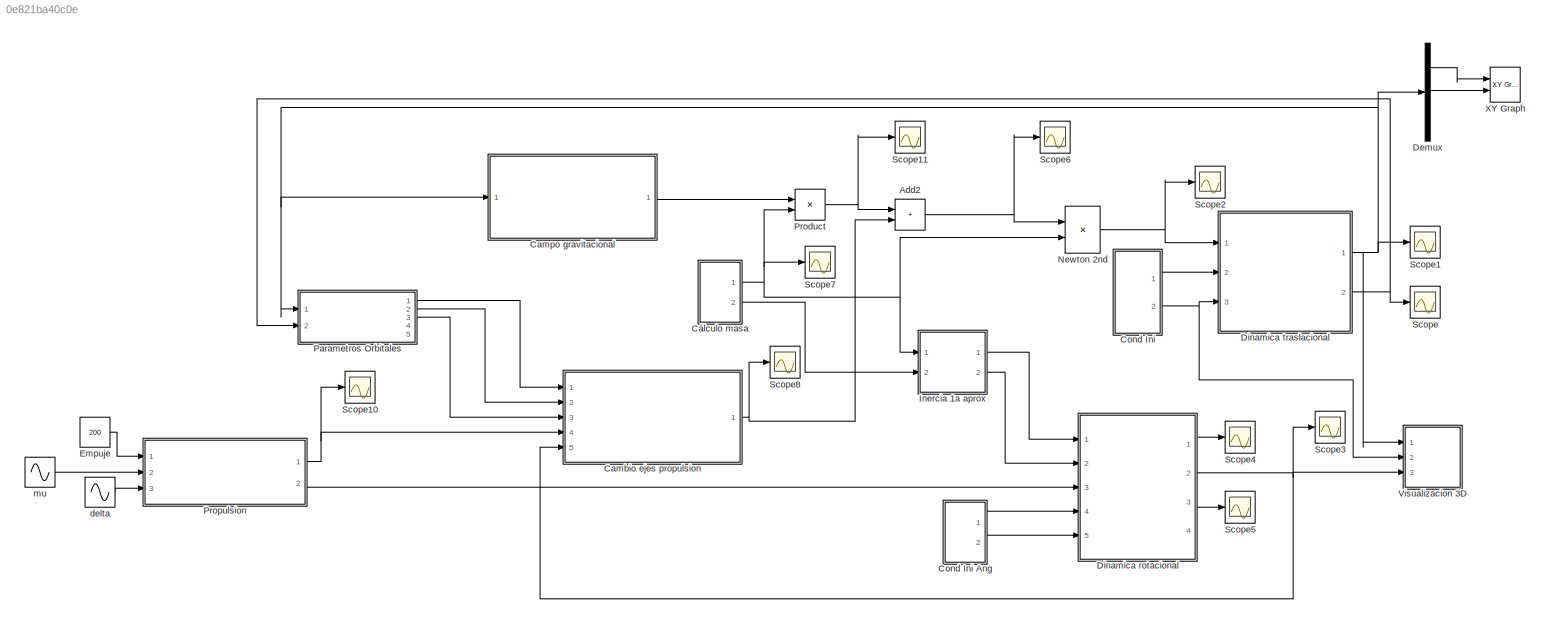
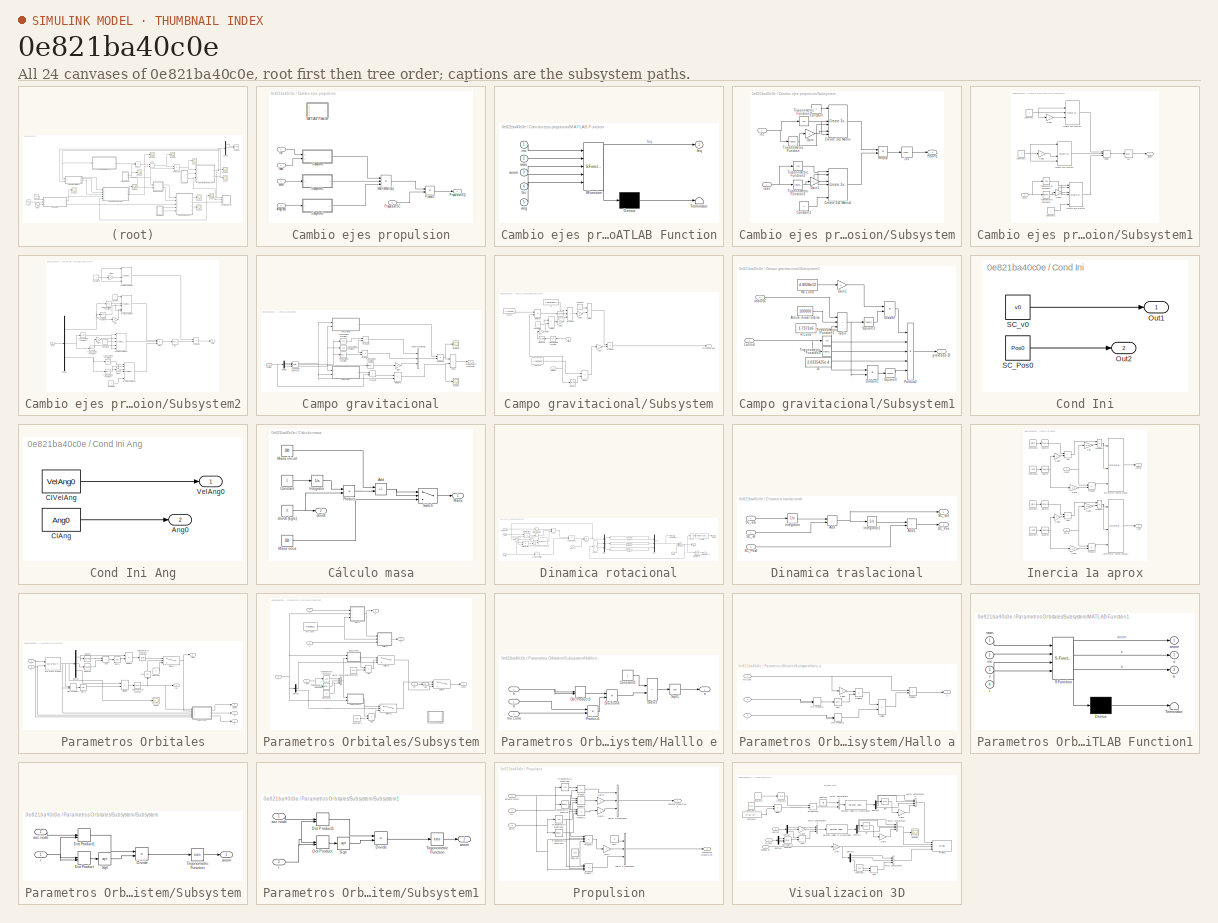
[diagram: thumbnail index - all 24 canvases of the model, root first then tree order]
MODEL slx_0e821ba40c0e
KIND model
CONFIG AbsTol = auto
CONFIG EnableMultiTasking = off
CONFIG FixedStep = auto
CONFIG MaxStep = auto
CONFIG MinStep = auto
CONFIG RelTol = 1e-3
CONFIG SampleTimeConstraint = Unconstrained
CONFIG SolverName = VariableStepAuto
CONFIG StartTime = 0.0
CONFIG StopTime = 20000
WORKSPACE source: mxarray member
WORKSPACE Ang0 = [0 0 0]
WORKSPACE VelAng0 = [0 0 0]
WORKSPACE altura = 3.5
WORKSPACE delta = 0.05
WORKSPACE mu = 0.01
WORKSPACE r = 2.25
WORKSPACE radio = 2.25
BLOCK [Sum] Add2
  IconShape = rectangular
  Ports = [2, 1]
BLOCK [SubSystem] Cambio ejes propulsion
  Ports = [5, 1]
  RequestExecContextInheritance = off
BLOCK [Inport] Cambio ejes propulsion/Ang(rad)
  Port = 5
BLOCK [SubSystem] Cambio ejes propulsion/MATLAB Function
  Commented = on
  ErrorFcn = Stateflow.Translate.translate
  PermitHierarchicalResolution = ExplicitOnly
  Ports = [5, 1]
  RequestExecContextInheritance = off
  SFBlockType = MATLAB Function
  TreatAsAtomicUnit = on
BLOCK [Demux] Cambio ejes propulsion/MATLAB Function/ Demux 
  Outputs = 1
  Ports = [1, 1]
BLOCK [S-Function] Cambio ejes propulsion/MATLAB Function/ SFunction 
  EnableBusSupport = on
  FunctionName = sf_sfun
  PortCounts = [5 2]
  Ports = [5, 2]
  SFcnIsStateOwnerBlock = off
  SFunctionDeploymentMode = off
  Tag = Stateflow S-Function 2
BLOCK [Terminator] Cambio ejes propulsion/MATLAB Function/ Terminator 
BLOCK [Inport] Cambio ejes propulsion/MATLAB Function/ang
  Port = 5
BLOCK [Inport] Cambio ejes propulsion/MATLAB Function/anom
  Port = 3
BLOCK [Outport] Cambio ejes propulsion/MATLAB Function/feq
BLOCK [Inport] Cambio ejes propulsion/MATLAB Function/fsc
  Port = 4
BLOCK [Inport] Cambio ejes propulsion/MATLAB Function/inc
BLOCK [Inport] Cambio ejes propulsion/MATLAB Function/raan
  Port = 2
BLOCK [Product] Cambio ejes propulsion/MatrixMultiply
  Inputs = 3
  Multiplication = Matrix(*)
  Ports = [3, 1]
BLOCK [Product] Cambio ejes propulsion/Product2
  Multiplication = Matrix(*)
  Ports = [2, 1]
BLOCK [Outport] Cambio ejes propulsion/Propulsion EQ
BLOCK [Inport] Cambio ejes propulsion/Propulsion SC
  Port = 4
BLOCK [SubSystem] Cambio ejes propulsion/Subsystem
  Ports = [2, 1]
  RequestExecContextInheritance = off
BLOCK [Constant] Cambio ejes propulsion/Subsystem/Constant
BLOCK [Constant] Cambio ejes propulsion/Subsystem/Constant1
BLOCK [Reference] Cambio ejes propulsion/Subsystem/Create 3x3 Matrix  REF=sharedutil/Create 3x3 Matrix
  Ports = [9, 1]
  SourceBlock = sharedutil/Create 3x3 Matrix
  SourceProductBaseCode = AE,PW,MT,UV,VE,VP
  SourceType = Create 3x3 Matrix
BLOCK [Reference] Cambio ejes propulsion/Subsystem/Create 3x3 Matrix1  REF=sharedutil/Create 3x3 Matrix
  Ports = [9, 1]
  SourceBlock = sharedutil/Create 3x3 Matrix
  SourceProductBaseCode = AE,PW,MT,UV,VE,VP
  SourceType = Create 3x3 Matrix
BLOCK [Gain] Cambio ejes propulsion/Subsystem/Gain
  Gain = -1
BLOCK [Gain] Cambio ejes propulsion/Subsystem/Gain1
  Gain = -1
BLOCK [Product] Cambio ejes propulsion/Subsystem/Reqop
  Multiplication = Matrix(*)
  Ports = [2, 1]
BLOCK [Outport] Cambio ejes propulsion/Subsystem/Ropeq
BLOCK [Trigonometry] Cambio ejes propulsion/Subsystem/Trigonometric Function
  Ports = [1, 1]
BLOCK [Trigonometry] Cambio ejes propulsion/Subsystem/Trigonometric Function1
  Operator = cos
  Ports = [1, 1]
BLOCK [Trigonometry] Cambio ejes propulsion/Subsystem/Trigonometric Function2
  Operator = cos
  Ports = [1, 1]
BLOCK [Trigonometry] Cambio ejes propulsion/Subsystem/Trigonometric Function3
  Ports = [1, 1]
BLOCK [Inport] Cambio ejes propulsion/Subsystem/inc
BLOCK [Reference] Cambio ejes propulsion/Subsystem/inv  REF=aerolibutil/Invert 
3x3 Matrix
  Ports = [1, 1]
  SourceBlock = aerolibutil/Invert \n3x3 Matrix
  SourceProductBaseCode = AE
  SourceType = Invert 3x3 Matrix
BLOCK [Inport] Cambio ejes propulsion/Subsystem/raan
  Port = 2
BLOCK [SubSystem] Cambio ejes propulsion/Subsystem1
  Ports = [1, 1]
  RequestExecContextInheritance = off
BLOCK [Constant] Cambio ejes propulsion/Subsystem1/Constant1
BLOCK [Constant] Cambio ejes propulsion/Subsystem1/Constant2
BLOCK [Constant] Cambio ejes propulsion/Subsystem1/Constant3
BLOCK [Reference] Cambio ejes propulsion/Subsystem1/Create 3x3 Matrix1  REF=sharedutil/Create 3x3 Matrix
  Ports = [9, 1]
  SourceBlock = sharedutil/Create 3x3 Matrix
  SourceProductBaseCode = AE,PW,MT,UV,VE,VP
  SourceType = Create 3x3 Matrix
BLOCK [Reference] Cambio ejes propulsion/Subsystem1/Create 3x3 Matrix2  REF=sharedutil/Create 3x3 Matrix
  Ports = [9, 1]
  SourceBlock = sharedutil/Create 3x3 Matrix
  SourceProductBaseCode = AE,PW,MT,UV,VE,VP
  SourceType = Create 3x3 Matrix
BLOCK [Reference] Cambio ejes propulsion/Subsystem1/Create 3x3 Matrix3  REF=sharedutil/Create 3x3 Matrix
  Ports = [9, 1]
  SourceBlock = sharedutil/Create 3x3 Matrix
  SourceProductBaseCode = AE,PW,MT,UV,VE,VP
  SourceType = Create 3x3 Matrix
BLOCK [Gain] Cambio ejes propulsion/Subsystem1/Gain1
  Gain = -1
BLOCK [Gain] Cambio ejes propulsion/Subsystem1/Gain2
  Gain = -1
BLOCK [Gain] Cambio ejes propulsion/Subsystem1/Gain3
  Gain = -1
BLOCK [Outport] Cambio ejes propulsion/Subsystem1/Rloop
BLOCK [Product] Cambio ejes propulsion/Subsystem1/Roplo
  Inputs = 3
  Multiplication = Matrix(*)
  Ports = [3, 1]
BLOCK [Trigonometry] Cambio ejes propulsion/Subsystem1/Trigonometric Function2
  Operator = cos
  Ports = [1, 1]
BLOCK [Trigonometry] Cambio ejes propulsion/Subsystem1/Trigonometric Function3
  Ports = [1, 1]
BLOCK [Inport] Cambio ejes propulsion/Subsystem1/anom
BLOCK [Reference] Cambio ejes propulsion/Subsystem1/inv  REF=aerolibutil/Invert 
3x3 Matrix
  Ports = [1, 1]
  SourceBlock = aerolibutil/Invert \n3x3 Matrix
  SourceProductBaseCode = AE
  SourceType = Invert 3x3 Matrix
BLOCK [SubSystem] Cambio ejes propulsion/Subsystem2
  Ports = [1, 1]
  RequestExecContextInheritance = off
BLOCK [Constant] Cambio ejes propulsion/Subsystem2/Constant
BLOCK [Constant] Cambio ejes propulsion/Subsystem2/Constant1
BLOCK [Constant] Cambio ejes propulsion/Subsystem2/Constant2
BLOCK [Constant] Cambio ejes propulsion/Subsystem2/Constant3
BLOCK [Reference] Cambio ejes propulsion/Subsystem2/Create 3x3 Matrix  REF=sharedutil/Create 3x3 Matrix
  Ports = [9, 1]
  SourceBlock = sharedutil/Create 3x3 Matrix
  SourceProductBaseCode = AE,PW,MT,UV,VE,VP
  SourceType = Create 3x3 Matrix
BLOCK [Reference] Cambio ejes propulsion/Subsystem2/Create 3x3 Matrix1  REF=sharedutil/Create 3x3 Matrix
  Ports = [9, 1]
  SourceBlock = sharedutil/Create 3x3 Matrix
  SourceProductBaseCode = AE,PW,MT,UV,VE,VP
  SourceType = Create 3x3 Matrix
BLOCK [Reference] Cambio ejes propulsion/Subsystem2/Create 3x3 Matrix2  REF=sharedutil/Create 3x3 Matrix
  Ports = [9, 1]
  SourceBlock = sharedutil/Create 3x3 Matrix
  SourceProductBaseCode = AE,PW,MT,UV,VE,VP
  SourceType = Create 3x3 Matrix
BLOCK [Reference] Cambio ejes propulsion/Subsystem2/Create 3x3 Matrix3  REF=sharedutil/Create 3x3 Matrix
  Ports = [9, 1]
  SourceBlock = sharedutil/Create 3x3 Matrix
  SourceProductBaseCode = AE,PW,MT,UV,VE,VP
  SourceType = Create 3x3 Matrix
BLOCK [Demux] Cambio ejes propulsion/Subsystem2/Demux
  Outputs = 3
  Ports = [1, 3]
BLOCK [Gain] Cambio ejes propulsion/Subsystem2/Gain
  Gain = -1
BLOCK [Gain] Cambio ejes propulsion/Subsystem2/Gain1
  Gain = -1
BLOCK [Gain] Cambio ejes propulsion/Subsystem2/Gain2
  Gain = -1
BLOCK [Gain] Cambio ejes propulsion/Subsystem2/Gain3
  Gain = -1
BLOCK [Product] Cambio ejes propulsion/Subsystem2/Product2
  Multiplication = Matrix(*)
  Ports = [2, 1]
BLOCK [Outport] Cambio ejes propulsion/Subsystem2/Ralo
BLOCK [Product] Cambio ejes propulsion/Subsystem2/Rloa
  Inputs = 3
  Multiplication = Matrix(*)
  Ports = [3, 1]
BLOCK [Trigonometry] Cambio ejes propulsion/Subsystem2/Trigonometric Function
  Ports = [1, 1]
BLOCK [Trigonometry] Cambio ejes propulsion/Subsystem2/Trigonometric Function1
  Operator = cos
  Ports = [1, 1]
BLOCK [Trigonometry] Cambio ejes propulsion/Subsystem2/Trigonometric Function2
  Operator = cos
  Ports = [1, 1]
BLOCK [Trigonometry] Cambio ejes propulsion/Subsystem2/Trigonometric Function3
  Ports = [1, 1]
BLOCK [Trigonometry] Cambio ejes propulsion/Subsystem2/Trigonometric Function4
  Ports = [1, 1]
BLOCK [Trigonometry] Cambio ejes propulsion/Subsystem2/Trigonometric Function5
  Operator = cos
  Ports = [1, 1]
BLOCK [Inport] Cambio ejes propulsion/Subsystem2/ang
BLOCK [Reference] Cambio ejes propulsion/Subsystem2/inv  REF=aerolibutil/Invert 
3x3 Matrix
  Ports = [1, 1]
  SourceBlock = aerolibutil/Invert \n3x3 Matrix
  SourceProductBaseCode = AE
  SourceType = Invert 3x3 Matrix
BLOCK [Inport] Cambio ejes propulsion/anom
  Port = 3
BLOCK [Inport] Cambio ejes propulsion/inc
BLOCK [Inport] Cambio ejes propulsion/raan
  Port = 2
BLOCK [SubSystem] Campo gravitacional
  Ports = [1, 1]
  RequestExecContextInheritance = off
BLOCK [Reference] Campo gravitacional/Cartesian to Spherical  REF=simulink_extras/Transformations/Cartesian to
Spherical
  Ports = [3, 3]
  SourceBlock = simulink_extras/Transformations/Cartesian to\nSpherical
  SourceProductBaseCode = SL
  SourceType = Cart2Sph
BLOCK [Outport] Campo gravitacional/Componentes gravedad
BLOCK [Demux] Campo gravitacional/Demux
  Outputs = 3
  Ports = [1, 3]
BLOCK [Product] Campo gravitacional/Division2
  Inputs = */
  Ports = [2, 1]
BLOCK [Gain] Campo gravitacional/Gain1
  Gain = -1
BLOCK [Inport] Campo gravitacional/Position
BLOCK [Product] Campo gravitacional/Product1
  Ports = [2, 1]
BLOCK [Product] Campo gravitacional/Product2
  Ports = [2, 1]
BLOCK [Product] Campo gravitacional/Product3
  Ports = [2, 1]
BLOCK [Product] Campo gravitacional/Product4
  Ports = [2, 1]
BLOCK [Scope] Campo gravitacional/Scope1
  Floating = off
  NumInputPorts = 1
  Ports = [1]
  ScopeSpecificationString = Simulink.scopes.TimeScopeBlockCfg('CurrentConfiguration', extmgr.ConfigurationSet(extmgr.Configuration('Core','General UI',true),extmgr.Configuration('Core','Source UI',true),extmgr.Configuration('Sources','WiredSimulink',true,'DataLoggingVariableName','ScopeData2'),extmgr.Configuration('Visuals','Time Domain',true,'SerializedDisplays',{struct('MinYLimReal','-1.85355','MaxYLimReal','1.76253','YLab...<+1882ch>
BLOCK [Scope] Campo gravitacional/Scope11
  Floating = off
  NumInputPorts = 1
  Ports = [1]
  ScopeSpecificationString = Simulink.scopes.TimeScopeBlockCfg('CurrentConfiguration', extmgr.ConfigurationSet(extmgr.Configuration('Core','General UI',true),extmgr.Configuration('Core','Source UI',true),extmgr.Configuration('Sources','WiredSimulink',true,'DataLoggingVariableName','ScopeData1'),extmgr.Configuration('Visuals','Time Domain',true,'SerializedDisplays',{struct('MinYLimReal','-0.00012','MaxYLimReal','0.00012','YLab...<+1904ch>
BLOCK [SubSystem] Campo gravitacional/Subsystem
  Ports = [2, 1]
  RequestExecContextInheritance = off
BLOCK [Constant] Campo gravitacional/Subsystem/Constant1
BLOCK [Constant] Campo gravitacional/Subsystem/Constant2
BLOCK [Product] Campo gravitacional/Subsystem/Division
  Inputs = */
  Ports = [2, 1]
BLOCK [Product] Campo gravitacional/Subsystem/Division2
  Inputs = */
  Ports = [2, 1]
BLOCK [Gain] Campo gravitacional/Subsystem/Gain
  Gain = -1
BLOCK [Gain] Campo gravitacional/Subsystem/Gain2
  Gain = 3
BLOCK [Gain] Campo gravitacional/Subsystem/Gain3
  Gain = 0.5
BLOCK [Gain] Campo gravitacional/Subsystem/Gain4
  Gain = 3
BLOCK [Constant] Campo gravitacional/Subsystem/J2
  Value = 2.0335425e-4
BLOCK [Inport] Campo gravitacional/Subsystem/Latitud
BLOCK [Product] Campo gravitacional/Subsystem/Product1
  Ports = [2, 1]
BLOCK [Product] Campo gravitacional/Subsystem/Product3
  Inputs = 3
  Ports = [3, 1]
BLOCK [Constant] Campo gravitacional/Subsystem/R Luna
  Value = 1.7371e6
BLOCK [Math] Campo gravitacional/Subsystem/Square
  Operator = square
  Ports = [1, 1]
BLOCK [Math] Campo gravitacional/Subsystem/Square1
  Operator = square
  Ports = [1, 1]
BLOCK [Math] Campo gravitacional/Subsystem/Square2
  Operator = square
  Ports = [1, 1]
BLOCK [Trigonometry] Campo gravitacional/Subsystem/Trigonometric Function
  Operator = cos
  Ports = [1, 1]
BLOCK [Outport] Campo gravitacional/Subsystem/gravedad radial
BLOCK [Constant] Campo gravitacional/Subsystem/mu Luna
  Value = 4.9028e12
BLOCK [Sum] Campo gravitacional/Subsystem/radio2
  IconShape = rectangular
  Inputs = +-
  Ports = [2, 1]
BLOCK [Sum] Campo gravitacional/Subsystem/radio3
  IconShape = rectangular
  Inputs = -+
  Ports = [2, 1]
BLOCK [Inport] Campo gravitacional/Subsystem/radioSC
  Port = 2
BLOCK [SubSystem] Campo gravitacional/Subsystem1
  Ports = [2, 1]
  RequestExecContextInheritance = off
BLOCK [Constant] Campo gravitacional/Subsystem1/Altura inicial orbita
  Value = 100000
BLOCK [Product] Campo gravitacional/Subsystem1/Division
  Inputs = */
  Ports = [2, 1]
BLOCK [Product] Campo gravitacional/Subsystem1/Division1
  Inputs = */
  Ports = [2, 1]
BLOCK [Gain] Campo gravitacional/Subsystem1/Gain1
  Gain = 3
BLOCK [Constant] Campo gravitacional/Subsystem1/J2
  Value = 2.0335425e-4
BLOCK [Inport] Campo gravitacional/Subsystem1/Latitud
  Port = 2
BLOCK [Product] Campo gravitacional/Subsystem1/Product2
  Inputs = 5
  Ports = [5, 1]
BLOCK [Constant] Campo gravitacional/Subsystem1/R Luna
  Value = 1.7371e6
BLOCK [Math] Campo gravitacional/Subsystem1/Square3
  Operator = square
  Ports = [1, 1]
BLOCK [Math] Campo gravitacional/Subsystem1/Square4
  Operator = square
  Ports = [1, 1]
BLOCK [Trigonometry] Campo gravitacional/Subsystem1/Trigonometric Function1
  Operator = cos
  Ports = [1, 1]
BLOCK [Trigonometry] Campo gravitacional/Subsystem1/Trigonometric Function2
  Ports = [1, 1]
BLOCK [Outport] Campo gravitacional/Subsystem1/gravedad J2
BLOCK [Constant] Campo gravitacional/Subsystem1/mu Luna
  Value = 4.9028e12
BLOCK [Sum] Campo gravitacional/Subsystem1/radio
  IconShape = rectangular
  Inputs = +++
  Ports = [3, 1]
BLOCK [Inport] Campo gravitacional/Subsystem1/radioSC
BLOCK [Trigonometry] Campo gravitacional/Trigonometric Function2
  Ports = [1, 1]
BLOCK [Trigonometry] Campo gravitacional/Trigonometric Function3
  Ports = [1, 1]
BLOCK [Trigonometry] Campo gravitacional/Trigonometric Function4
  Operator = cos
  Ports = [1, 1]
BLOCK [Trigonometry] Campo gravitacional/Trigonometric Function5
  Operator = cos
  Ports = [1, 1]
BLOCK [Concatenate] Campo gravitacional/Vector Concatenate
  NumInputs = 3
  Ports = [3, 1]
BLOCK [Sum] Campo gravitacional/radio2
  IconShape = rectangular
  Ports = [2, 1]
BLOCK [SubSystem] Cond Ini
  Ports = [0, 2]
  RequestExecContextInheritance = off
BLOCK [SubSystem] Cond Ini Ang
  Ports = [0, 2]
  RequestExecContextInheritance = off
BLOCK [Outport] Cond Ini Ang/Ang0
  IconDisplay = Signal name
  Port = 2
BLOCK [Constant] Cond Ini Ang/CIAng
  Value = Ang0
  VectorParams1D = off
BLOCK [Constant] Cond Ini Ang/CIVelAng
  Value = VelAng0
  VectorParams1D = off
BLOCK [Outport] Cond Ini Ang/VelAng0
  IconDisplay = Signal name
BLOCK [Outport] Cond Ini/Out1
  IconDisplay = Signal name
BLOCK [Outport] Cond Ini/Out2
  IconDisplay = Signal name
  Port = 2
BLOCK [Constant] Cond Ini/SC_Pos0
  Value = Pos0
  VectorParams1D = off
BLOCK [Constant] Cond Ini/SC_v0
  Value = v0
  VectorParams1D = off
BLOCK [SubSystem] Cálculo masa
  Ports = [0, 2]
  RequestExecContextInheritance = off
BLOCK [Sum] Cálculo masa/Add
  IconShape = rectangular
  Inputs = +-
  Ports = [2, 1]
BLOCK [Constant] Cálculo masa/Constant
BLOCK [Integrator] Cálculo masa/Integrator
  Ports = [1, 1]
BLOCK [Outport] Cálculo masa/Masa
BLOCK [Constant] Cálculo masa/Masa inicial
  Value = 5000
BLOCK [Constant] Cálculo masa/Masa seca
  Value = 2530
BLOCK [Product] Cálculo masa/Product
  Ports = [2, 1]
BLOCK [Switch] Cálculo masa/Switch
  Criteria = u2 > Threshold
  InputSameDT = off
  SaturateOnIntegerOverflow = off
  Threshold = 2530
BLOCK [Outport] Cálculo masa/dm//dt
  Port = 2
BLOCK [Constant] Cálculo masa/dm//dt (kg//s)
  Value = 0
BLOCK [Demux] Demux
  Outputs = 3
  Ports = [1, 3]
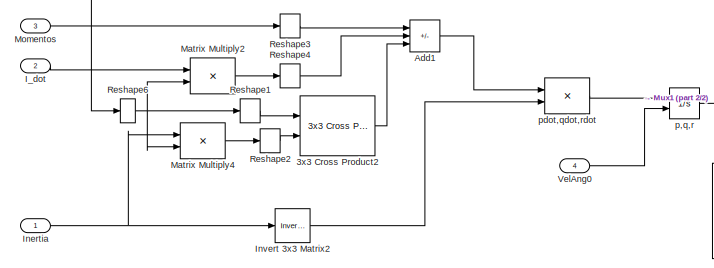
[diagram: Dinamica rotacional - part 1/2, left side, full height]
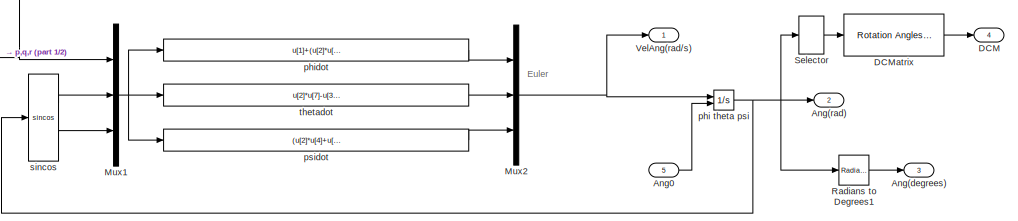
[diagram: Dinamica rotacional - part 2/2, middle right region]
BLOCK [SubSystem] Dinamica rotacional
  Ports = [5, 4]
  RequestExecContextInheritance = off
BLOCK [Reference] Dinamica rotacional/3x3 Cross Product2  REF=sharedutil/3x3 Cross Product
  Ports = [2, 1]
  SourceBlock = sharedutil/3x3 Cross Product
  SourceProductBaseCode = AE,PW,MT,UV,VE,VP
  SourceType = CrossProduct
BLOCK [Sum] Dinamica rotacional/Add1
  IconShape = rectangular
  Inputs = +--
  Ports = [3, 1]
BLOCK [Outport] Dinamica rotacional/Ang(degrees)
  Port = 3
BLOCK [Outport] Dinamica rotacional/Ang(rad)
  Port = 2
BLOCK [Inport] Dinamica rotacional/Ang0
  Port = 5
BLOCK [Outport] Dinamica rotacional/DCM
  Port = 4
BLOCK [Reference] Dinamica rotacional/DCMatrix  REF=sharedtransform/Rotation Angles to
Direction Cosine Matrix
  AttributesFormatString = Rotation Order: %<rotationOrder>
  Ports = [1, 1]
  SourceBlock = sharedtransform/Rotation Angles to\nDirection Cosine Matrix
  SourceProductBaseCode = AE,PW,MT,UV,VE,VP
  SourceType = Ang2DCM
BLOCK [Inport] Dinamica rotacional/I_dot
  Port = 2
BLOCK [Inport] Dinamica rotacional/Inertia
BLOCK [Reference] Dinamica rotacional/Invert 3x3 Matrix2  REF=aerolibutil/Invert 
3x3 Matrix
  Ports = [1, 1]
  SourceBlock = aerolibutil/Invert \n3x3 Matrix
  SourceProductBaseCode = AE
  SourceType = Invert 3x3 Matrix
BLOCK [Product] Dinamica rotacional/Matrix Multiply2
  Multiplication = Matrix(*)
  Ports = [2, 1]
BLOCK [Product] Dinamica rotacional/Matrix Multiply4
  Multiplication = Matrix(*)
  Ports = [2, 1]
BLOCK [Inport] Dinamica rotacional/Momentos
  Port = 3
BLOCK [Mux] Dinamica rotacional/Mux1
  DisplayOption = bar
  Inputs = [3 3 3]
  Ports = [3, 1]
BLOCK [Mux] Dinamica rotacional/Mux2
  DisplayOption = bar
  Inputs = 3
  Ports = [3, 1]
BLOCK [Reference] Dinamica rotacional/Radians to Degrees1  REF=simulink_extras/Transformations/Radians
to Degrees
  Ports = [1, 1]
  SourceBlock = simulink_extras/Transformations/Radians\nto Degrees
  SourceProductBaseCode = SL
  SourceType = RadiansToDegrees
BLOCK [Reshape] Dinamica rotacional/Reshape1
  OutputDimensionality = Row vector (2-D)
  Ports = [1, 1]
BLOCK [Reshape] Dinamica rotacional/Reshape2
  OutputDimensionality = Row vector (2-D)
  Ports = [1, 1]
BLOCK [Reshape] Dinamica rotacional/Reshape3
  OutputDimensionality = Row vector (2-D)
  Ports = [1, 1]
BLOCK [Reshape] Dinamica rotacional/Reshape4
  OutputDimensionality = Row vector (2-D)
  Ports = [1, 1]
BLOCK [Reshape] Dinamica rotacional/Reshape6
  OutputDimensionality = Column vector (2-D)
  Ports = [1, 1]
BLOCK [Selector] Dinamica rotacional/Selector
  IndexOptions = Index vector (dialog)
  Indices = [3 2 1]
  InputPortWidth = 3
  OutputSizes = 1
  Ports = [1, 1]
BLOCK [Outport] Dinamica rotacional/VelAng(rad//s)
BLOCK [Inport] Dinamica rotacional/VelAng0
  Port = 4
BLOCK [Integrator] Dinamica rotacional/p,q,r
  InitialConditionSource = external
  Ports = [2, 1]
BLOCK [Product] Dinamica rotacional/pdot,qdot,rdot
  Multiplication = Matrix(*)
  Ports = [2, 1]
BLOCK [Integrator] Dinamica rotacional/phi theta psi
  InitialConditionSource = external
  Ports = [2, 1]
  WrapState = on
BLOCK [Fcn] Dinamica rotacional/phidot
  Expr = u[1]+(u[2]*u[4]+u[3]*u[7])*(u[5]/u[8])
BLOCK [Fcn] Dinamica rotacional/psidot
  Expr = (u[2]*u[4]+u[3]*u[7])/u[8]
BLOCK [Trigonometry] Dinamica rotacional/sincos
  Operator = sincos
  Ports = [1, 2]
BLOCK [Fcn] Dinamica rotacional/thetadot
  Expr = u[2]*u[7]-u[3]*u[4]
BLOCK [SubSystem] Dinamica traslacional
  Ports = [3, 2]
  RequestExecContextInheritance = off
BLOCK [Sum] Dinamica traslacional/Add
  IconShape = rectangular
  Ports = [2, 1]
BLOCK [Sum] Dinamica traslacional/Add1
  IconShape = rectangular
  Ports = [2, 1]
BLOCK [Integrator] Dinamica traslacional/Integrator
  Ports = [1, 1]
BLOCK [Integrator] Dinamica traslacional/Integrator1
  Ports = [1, 1]
BLOCK [Outport] Dinamica traslacional/SC_Pos
BLOCK [Inport] Dinamica traslacional/SC_Pos0
  Port = 3
BLOCK [Outport] Dinamica traslacional/SC_Vel
  Port = 2
BLOCK [Inport] Dinamica traslacional/SC_acc
BLOCK [Inport] Dinamica traslacional/SC_v0
  Port = 2
BLOCK [Constant] Empuje
  Value = 200
BLOCK [SubSystem] Inercia 1a aprox
  Ports = [2, 2]
  RequestExecContextInheritance = off
BLOCK [Sum] Inercia 1a aprox/Add
  IconShape = rectangular
  Ports = [2, 1]
BLOCK [Sum] Inercia 1a aprox/Add1
  IconShape = rectangular
  Ports = [2, 1]
BLOCK [Constant] Inercia 1a aprox/Constant1
  Value = radio
BLOCK [Constant] Inercia 1a aprox/Constant2
  Value = altura
BLOCK [Constant] Inercia 1a aprox/Constant5
  Value = radio
BLOCK [Constant] Inercia 1a aprox/Constant6
  Value = altura
BLOCK [Gain] Inercia 1a aprox/Gain
  Gain = 1/12
BLOCK [Gain] Inercia 1a aprox/Gain1
  Gain = 1/2
BLOCK [Gain] Inercia 1a aprox/Gain2
  Gain = 3
BLOCK [Gain] Inercia 1a aprox/Gain3
  Gain = 1/12
BLOCK [Gain] Inercia 1a aprox/Gain4
  Gain = 1/2
BLOCK [Gain] Inercia 1a aprox/Gain5
  Gain = 3
BLOCK [Outport] Inercia 1a aprox/I_dot
  Port = 2
BLOCK [Outport] Inercia 1a aprox/Inertia
BLOCK [Product] Inercia 1a aprox/Product
  Ports = [2, 1]
BLOCK [Product] Inercia 1a aprox/Product1
  Ports = [2, 1]
BLOCK [Product] Inercia 1a aprox/Product2
  Ports = [2, 1]
BLOCK [Product] Inercia 1a aprox/Product3
  Ports = [2, 1]
BLOCK [Math] Inercia 1a aprox/Square
  Operator = square
  Ports = [1, 1]
BLOCK [Math] Inercia 1a aprox/Square1
  Operator = square
  Ports = [1, 1]
BLOCK [Math] Inercia 1a aprox/Square2
  Operator = square
  Ports = [1, 1]
BLOCK [Math] Inercia 1a aprox/Square3
  Operator = square
  Ports = [1, 1]
BLOCK [Reference] Inercia 1a aprox/Symmetric Inertia Tensor  REF=aerolibbdyn/Symmetric Inertia Tensor
  Ports = [6, 1]
  SourceBlock = aerolibbdyn/Symmetric Inertia Tensor
  SourceProductBaseCode = AE
  SourceType = Symmetric Inertia Tensor
BLOCK [Reference] Inercia 1a aprox/Symmetric Inertia Tensor1  REF=aerolibbdyn/Symmetric Inertia Tensor
  Ports = [6, 1]
  SourceBlock = aerolibbdyn/Symmetric Inertia Tensor
  SourceProductBaseCode = AE
  SourceType = Symmetric Inertia Tensor
BLOCK [Inport] Inercia 1a aprox/dm//dt
  Port = 2
BLOCK [Inport] Inercia 1a aprox/masa
BLOCK [Product] Newton 2nd
  Inputs = */
  Ports = [2, 1]
BLOCK [SubSystem] Parametros Orbitales
  Ports = [2, 5]
  RequestExecContextInheritance = off
BLOCK [Reference] Parametros Orbitales/3x3 Cross Product  REF=sharedutil/3x3 Cross Product
  Ports = [2, 1]
  SourceBlock = sharedutil/3x3 Cross Product
  SourceProductBaseCode = AE,PW,MT,UV,VE,VP
  SourceType = CrossProduct
BLOCK [Abs] Parametros Orbitales/Abs
  NameLocation = right
  SaturateOnIntegerOverflow = off
BLOCK [Sum] Parametros Orbitales/Add
  IconShape = rectangular
  Ports = [2, 1]
BLOCK [Constant] Parametros Orbitales/Constant
  Value = 0
BLOCK [Demux] Parametros Orbitales/Demux
  Outputs = 3
  Ports = [1, 3]
BLOCK [Product] Parametros Orbitales/Division
  Inputs = */
  Ports = [2, 1]
BLOCK [Product] Parametros Orbitales/Division1
  Inputs = */
  Ports = [2, 1]
BLOCK [DotProduct] Parametros Orbitales/Dot Product1
  OutDataTypeStr = Inherit: Inherit via internal rule
BLOCK [Scope] Parametros Orbitales/Scope
  Floating = off
  NumInputPorts = 1
  Ports = [1]
  ScopeSpecificationString = Simulink.scopes.TimeScopeBlockCfg('CurrentConfiguration', extmgr.ConfigurationSet(extmgr.Configuration('Core','General UI',true),extmgr.Configuration('Core','Source UI',true),extmgr.Configuration('Sources','WiredSimulink',true,'DataLoggingVariableName','ScopeData3'),extmgr.Configuration('Visuals','Time Domain',true,'SerializedDisplays',{struct('MinYLimReal','-376069647.49935','MaxYLimReal','338106...<+1846ch>
BLOCK [Sqrt] Parametros Orbitales/Sqrt1
BLOCK [Sqrt] Parametros Orbitales/Sqrt2
BLOCK [Math] Parametros Orbitales/Square
  Operator = square
  Ports = [1, 1]
BLOCK [Math] Parametros Orbitales/Square1
  Operator = square
  Ports = [1, 1]
BLOCK [SubSystem] Parametros Orbitales/Subsystem
  Ports = [5, 3]
  RequestExecContextInheritance = off
BLOCK [Abs] Parametros Orbitales/Subsystem/Abs
  SaturateOnIntegerOverflow = off
BLOCK [Sum] Parametros Orbitales/Subsystem/Add
  IconShape = rectangular
  Inputs = -+
  Ports = [2, 1]
BLOCK [Sum] Parametros Orbitales/Subsystem/Add1
  IconShape = rectangular
  Inputs = -+
  Ports = [2, 1]
BLOCK [Constant] Parametros Orbitales/Subsystem/Constant1
  Value = 0
BLOCK [Constant] Parametros Orbitales/Subsystem/Constant2
  Value = 2.*pi
BLOCK [Constant] Parametros Orbitales/Subsystem/Constant3
  Value = 2.*pi
BLOCK [Demux] Parametros Orbitales/Subsystem/Demux
  Outputs = 3
  Ports = [1, 3]
BLOCK [SubSystem] Parametros Orbitales/Subsystem/Halllo e
  Ports = [3, 1]
  RequestExecContextInheritance = off
BLOCK [Constant] Parametros Orbitales/Subsystem/Halllo e/Constant1
BLOCK [Product] Parametros Orbitales/Subsystem/Halllo e/Division4
  Inputs = */
  Ports = [2, 1]
BLOCK [DotProduct] Parametros Orbitales/Subsystem/Halllo e/Dot Product3
  OutDataTypeStr = Inherit: Inherit via internal rule
BLOCK [Product] Parametros Orbitales/Subsystem/Halllo e/Product1
  Ports = [2, 1]
BLOCK [Sqrt] Parametros Orbitales/Subsystem/Halllo e/Sqrt1
BLOCK [Inport] Parametros Orbitales/Subsystem/Halllo e/a
BLOCK [Outport] Parametros Orbitales/Subsystem/Halllo e/e
BLOCK [Inport] Parametros Orbitales/Subsystem/Halllo e/h
  Port = 3
BLOCK [Inport] Parametros Orbitales/Subsystem/Halllo e/mu Luna
  Port = 2
BLOCK [Sum] Parametros Orbitales/Subsystem/Halllo e/radio3
  IconShape = rectangular
  Inputs = +-
  Ports = [2, 1]
BLOCK [SubSystem] Parametros Orbitales/Subsystem/Hallo a
  Ports = [3, 1]
  RequestExecContextInheritance = off
BLOCK [Product] Parametros Orbitales/Subsystem/Hallo a/Division1
  Inputs = */
  Ports = [2, 1]
BLOCK [Product] Parametros Orbitales/Subsystem/Hallo a/Division3
  Inputs = */
  Ports = [2, 1]
BLOCK [DotProduct] Parametros Orbitales/Subsystem/Hallo a/Dot Product1
  OutDataTypeStr = Inherit: Inherit via internal rule
BLOCK [DotProduct] Parametros Orbitales/Subsystem/Hallo a/Dot Product2
  OutDataTypeStr = Inherit: Inherit via internal rule
BLOCK [Gain] Parametros Orbitales/Subsystem/Hallo a/Gain2
  Gain = 2
BLOCK [Sqrt] Parametros Orbitales/Subsystem/Hallo a/Sqrt
BLOCK [Outport] Parametros Orbitales/Subsystem/Hallo a/a
BLOCK [Inport] Parametros Orbitales/Subsystem/Hallo a/mu Luna
  Port = 3
BLOCK [Inport] Parametros Orbitales/Subsystem/Hallo a/r
  Port = 2
BLOCK [Sum] Parametros Orbitales/Subsystem/Hallo a/radio2
  IconShape = rectangular
  Inputs = +-
  Ports = [2, 1]
BLOCK [Inport] Parametros Orbitales/Subsystem/Hallo a/v
BLOCK [SubSystem] Parametros Orbitales/Subsystem/MATLAB Function1
  Commented = on
  ErrorFcn = Stateflow.Translate.translate
  PermitHierarchicalResolution = ExplicitOnly
  Ports = [4, 3]
  RequestExecContextInheritance = off
  SFBlockType = MATLAB Function
  TreatAsAtomicUnit = on
BLOCK [Demux] Parametros Orbitales/Subsystem/MATLAB Function1/ Demux 
  Outputs = 1
  Ports = [1, 1]
BLOCK [S-Function] Parametros Orbitales/Subsystem/MATLAB Function1/ SFunction 
  EnableBusSupport = on
  FunctionName = sf_sfun
  PortCounts = [4 4]
  Ports = [4, 4]
  SFcnIsStateOwnerBlock = off
  SFunctionDeploymentMode = off
  Tag = Stateflow S-Function 1
BLOCK [Terminator] Parametros Orbitales/Subsystem/MATLAB Function1/ Terminator 
BLOCK [Outport] Parametros Orbitales/Subsystem/MATLAB Function1/a
  Port = 3
BLOCK [Outport] Parametros Orbitales/Subsystem/MATLAB Function1/anom
BLOCK [Outport] Parametros Orbitales/Subsystem/MATLAB Function1/e
  Port = 2
BLOCK [Inport] Parametros Orbitales/Subsystem/MATLAB Function1/inc
  Port = 2
BLOCK [Inport] Parametros Orbitales/Subsystem/MATLAB Function1/r
  Port = 4
BLOCK [Inport] Parametros Orbitales/Subsystem/MATLAB Function1/raan
BLOCK [Inport] Parametros Orbitales/Subsystem/MATLAB Function1/v
  Port = 3
BLOCK [SubSystem] Parametros Orbitales/Subsystem/Subsystem
  Ports = [2, 1]
  RequestExecContextInheritance = off
BLOCK [Product] Parametros Orbitales/Subsystem/Subsystem/Divide
  Inputs = */
  Ports = [2, 1]
BLOCK [DotProduct] Parametros Orbitales/Subsystem/Subsystem/Dot Product
  OutDataTypeStr = Inherit: Inherit via internal rule
BLOCK [DotProduct] Parametros Orbitales/Subsystem/Subsystem/Dot Product1
  OutDataTypeStr = Inherit: Inherit via internal rule
BLOCK [Sqrt] Parametros Orbitales/Subsystem/Subsystem/Sqrt
BLOCK [Trigonometry] Parametros Orbitales/Subsystem/Subsystem/Trigonometric Function
  Operator = acos
  Ports = [1, 1]
BLOCK [Outport] Parametros Orbitales/Subsystem/Subsystem/anom
BLOCK [Inport] Parametros Orbitales/Subsystem/Subsystem/asc node
  Port = 2
BLOCK [Inport] Parametros Orbitales/Subsystem/Subsystem/r
BLOCK [SubSystem] Parametros Orbitales/Subsystem/Subsystem1
  Ports = [2, 1]
  RequestExecContextInheritance = off
BLOCK [Product] Parametros Orbitales/Subsystem/Subsystem1/Divide
  Inputs = */
  Ports = [2, 1]
BLOCK [DotProduct] Parametros Orbitales/Subsystem/Subsystem1/Dot Product
  OutDataTypeStr = Inherit: Inherit via internal rule
BLOCK [DotProduct] Parametros Orbitales/Subsystem/Subsystem1/Dot Product1
  OutDataTypeStr = Inherit: Inherit via internal rule
BLOCK [Sqrt] Parametros Orbitales/Subsystem/Subsystem1/Sqrt
BLOCK [Trigonometry] Parametros Orbitales/Subsystem/Subsystem1/Trigonometric Function
  Operator = acos
  Ports = [1, 1]
BLOCK [Outport] Parametros Orbitales/Subsystem/Subsystem1/anom
BLOCK [Inport] Parametros Orbitales/Subsystem/Subsystem1/asc node
BLOCK [Inport] Parametros Orbitales/Subsystem/Subsystem1/r
  Port = 2
BLOCK [Switch] Parametros Orbitales/Subsystem/Switch
  Criteria = u2 > Threshold
  InputSameDT = off
  SaturateOnIntegerOverflow = off
  Threshold = 1e-3
BLOCK [Switch] Parametros Orbitales/Subsystem/Switch1
  Criteria = u2 > Threshold
  InputSameDT = off
  SaturateOnIntegerOverflow = off
  Threshold = 1e-5
BLOCK [Switch] Parametros Orbitales/Subsystem/Switch2
  InputSameDT = off
  SaturateOnIntegerOverflow = off
BLOCK [Trigonometry] Parametros Orbitales/Subsystem/Trigonometric Function2
  Operator = cos
  Ports = [1, 1]
BLOCK [Trigonometry] Parametros Orbitales/Subsystem/Trigonometric Function3
  Ports = [1, 1]
BLOCK [Concatenate] Parametros Orbitales/Subsystem/Vector Concatenate
  NumInputs = 3
  Ports = [3, 1]
BLOCK [Outport] Parametros Orbitales/Subsystem/a
  Port = 3
BLOCK [Outport] Parametros Orbitales/Subsystem/anom
BLOCK [Outport] Parametros Orbitales/Subsystem/e
  Port = 2
BLOCK [Inport] Parametros Orbitales/Subsystem/h
  Port = 3
BLOCK [Inport] Parametros Orbitales/Subsystem/inc
BLOCK [Constant] Parametros Orbitales/Subsystem/mu Luna
  Value = 4.9028e12
BLOCK [Inport] Parametros Orbitales/Subsystem/r
  Port = 5
BLOCK [Inport] Parametros Orbitales/Subsystem/raan
  Port = 2
BLOCK [Inport] Parametros Orbitales/Subsystem/v
  Port = 4
BLOCK [Switch] Parametros Orbitales/Switch
  Criteria = u2 > Threshold
  InputSameDT = off
  SaturateOnIntegerOverflow = off
  Threshold = 1e-2
BLOCK [Trigonometry] Parametros Orbitales/Trigonometric Function
  Operator = acos
  Ports = [1, 1]
BLOCK [Trigonometry] Parametros Orbitales/Trigonometric Function1
  Operator = asin
  Ports = [1, 1]
BLOCK [Outport] Parametros Orbitales/a
  Port = 5
BLOCK [Outport] Parametros Orbitales/anom
  Port = 3
BLOCK [Outport] Parametros Orbitales/e
  Port = 4
BLOCK [Outport] Parametros Orbitales/inc
BLOCK [Inport] Parametros Orbitales/r
BLOCK [Outport] Parametros Orbitales/raan
  Port = 2
BLOCK [Inport] Parametros Orbitales/v
  Port = 2
BLOCK [Product] Product
  Ports = [2, 1]
BLOCK [SubSystem] Propulsion
  Ports = [3, 2]
  RequestExecContextInheritance = off
BLOCK [Inport] Propulsion/Empuje motor
BLOCK [Constant] Propulsion/Epsilon
  Value = 1.75
BLOCK [Outport] Propulsion/Fuerzas propulsivas
BLOCK [Gain] Propulsion/Gain
  Gain = -1
BLOCK [Gain] Propulsion/Gain1
  Gain = -1
BLOCK [Gain] Propulsion/Gain2
  Gain = -1
BLOCK [Outport] Propulsion/Momentos propulsivos
  Port = 2
BLOCK [Product] Propulsion/Product
  Ports = [2, 1]
BLOCK [Product] Propulsion/Product1
  Inputs = 3
  Ports = [3, 1]
BLOCK [Product] Propulsion/Product2
  Inputs = 3
  Ports = [3, 1]
BLOCK [Product] Propulsion/Product3
  Inputs = 4
  Ports = [4, 1]
BLOCK [Product] Propulsion/Product4
  Inputs = 4
  Ports = [4, 1]
BLOCK [Trigonometry] Propulsion/Trigonometric Function
  Ports = [1, 1]
BLOCK [Trigonometry] Propulsion/Trigonometric Function1
  Operator = cos
  Ports = [1, 1]
BLOCK [Trigonometry] Propulsion/Trigonometric Function2
  Operator = cos
  Ports = [1, 1]
BLOCK [Trigonometry] Propulsion/Trigonometric Function3
  Ports = [1, 1]
BLOCK [Concatenate] Propulsion/Vector Concatenate
  NumInputs = 3
  Ports = [3, 1]
BLOCK [Concatenate] Propulsion/Vector Concatenate1
  NumInputs = 3
  Ports = [3, 1]
BLOCK [Inport] Propulsion/delta
  Port = 3
BLOCK [Inport] Propulsion/mu
  Port = 2
BLOCK [Constant] Propulsion/zero
  Value = 0
BLOCK [Scope] Scope
  Floating = off
  NumInputPorts = 1
  Ports = [1]
  ScopeSpecificationString = Simulink.scopes.TimeScopeBlockCfg('CurrentConfiguration', extmgr.ConfigurationSet(extmgr.Configuration('Core','General UI',true),extmgr.Configuration('Core','Source UI',true),extmgr.Configuration('Sources','WiredSimulink',true,'DataLoggingVariableName','ScopeData1'),extmgr.Configuration('Visuals','Time Domain',true,'SerializedDisplays',{struct('MinYLimReal','-2048.81392','MaxYLimReal','2077.82932'...<+1812ch>
BLOCK [Scope] Scope1
  Floating = off
  NumInputPorts = 1
  Ports = [1]
  ScopeSpecificationString = Simulink.scopes.TimeScopeBlockCfg('CurrentConfiguration', extmgr.ConfigurationSet(extmgr.Configuration('Core','General UI',true),extmgr.Configuration('Core','Source UI',true),extmgr.Configuration('Sources','WiredSimulink',true),extmgr.Configuration('Visuals','Time Domain',true,'SerializedDisplays',{struct('MinYLimReal','-1999766.23998','MaxYLimReal','3978964.10046','YLabelReal','','MinYLimMag','  ...<+1869ch>
BLOCK [Scope] Scope10
  Floating = off
  NumInputPorts = 1
  Ports = [1]
  ScopeSpecificationString = Simulink.scopes.TimeScopeBlockCfg('CurrentConfiguration', extmgr.ConfigurationSet(extmgr.Configuration('Core','General UI',true),extmgr.Configuration('Core','Source UI',true),extmgr.Configuration('Sources','WiredSimulink',true,'DataLoggingVariableName','ScopeData2'),extmgr.Configuration('Visuals','Time Domain',true,'SerializedDisplays',{struct('MinYLimReal','-36.24475','MaxYLimReal','226.24942','Y...<+1861ch>
BLOCK [Scope] Scope11
  Floating = off
  NumInputPorts = 1
  Ports = [1]
  ScopeSpecificationString = Simulink.scopes.TimeScopeBlockCfg('CurrentConfiguration', extmgr.ConfigurationSet(extmgr.Configuration('Core','General UI',true),extmgr.Configuration('Core','Source UI',true),extmgr.Configuration('Sources','WiredSimulink',true,'DataLoggingVariableName','ScopeData4'),extmgr.Configuration('Visuals','Time Domain',true,'SerializedDisplays',{struct('MinYLimReal','-8631.38441','MaxYLimReal','5027.20736'...<+1926ch>
BLOCK [Scope] Scope2
  Floating = off
  NumInputPorts = 1
  Ports = [1]
  ScopeSpecificationString = Simulink.scopes.TimeScopeBlockCfg('CurrentConfiguration', extmgr.ConfigurationSet(extmgr.Configuration('Core','General UI',true),extmgr.Configuration('Core','Source UI',true),extmgr.Configuration('Sources','WiredSimulink',true,'DataLoggingVariableName','ScopeData1'),extmgr.Configuration('Visuals','Time Domain',true,'SerializedDisplays',{struct('MinYLimReal','-1.3171','MaxYLimReal','1.59514','YLabe...<+1506ch>
BLOCK [Scope] Scope3
  Floating = off
  NumInputPorts = 1
  Ports = [1]
  ScopeSpecificationString = Simulink.scopes.TimeScopeBlockCfg('CurrentConfiguration', extmgr.ConfigurationSet(extmgr.Configuration('Core','General UI',true),extmgr.Configuration('Core','Source UI',true),extmgr.Configuration('Sources','WiredSimulink',true,'DataLoggingVariableName','ScopeData2'),extmgr.Configuration('Visuals','Time Domain',true,'SerializedDisplays',{struct('MinYLimReal','-3.6862','MaxYLimReal','3.7946','YLabel...<+1792ch>
BLOCK [Scope] Scope4
  Floating = off
  NumInputPorts = 1
  Ports = [1]
  ScopeSpecificationString = Simulink.scopes.TimeScopeBlockCfg('CurrentConfiguration', extmgr.ConfigurationSet(extmgr.Configuration('Core','General UI',true),extmgr.Configuration('Core','Source UI',true),extmgr.Configuration('Sources','WiredSimulink',true,'DataLoggingVariableName','ScopeData3'),extmgr.Configuration('Visuals','Time Domain',true,'SerializedDisplays',{struct('MinYLimReal','-0.01336','MaxYLimReal','0.1202','YLabe...<+1430ch>
BLOCK [Scope] Scope5
  Floating = off
  NumInputPorts = 1
  Ports = [1]
  ScopeSpecificationString = Simulink.scopes.TimeScopeBlockCfg('CurrentConfiguration', extmgr.ConfigurationSet(extmgr.Configuration('Core','General UI',true),extmgr.Configuration('Core','Source UI',true),extmgr.Configuration('Sources','WiredSimulink',true,'DataLoggingVariableName','ScopeData2'),extmgr.Configuration('Visuals','Time Domain',true,'SerializedDisplays',{struct('MinYLimReal','-224.81834','MaxYLimReal','224.88487','...<+1448ch>
BLOCK [Scope] Scope6
  Floating = off
  NumInputPorts = 1
  Ports = [1]
  ScopeSpecificationString = Simulink.scopes.TimeScopeBlockCfg('CurrentConfiguration', extmgr.ConfigurationSet(extmgr.Configuration('Core','General UI',true),extmgr.Configuration('Core','Source UI',true),extmgr.Configuration('Sources','WiredSimulink',true,'DataLoggingVariableName','ScopeData1'),extmgr.Configuration('Visuals','Time Domain',true,'SerializedDisplays',{struct('MinYLimReal','20450.32052','MaxYLimReal','26098.6032'...<+1562ch>
BLOCK [Scope] Scope7
  Floating = off
  NumInputPorts = 1
  Ports = [1]
  ScopeSpecificationString = Simulink.scopes.TimeScopeBlockCfg('CurrentConfiguration', extmgr.ConfigurationSet(extmgr.Configuration('Core','General UI',true),extmgr.Configuration('Core','Source UI',true),extmgr.Configuration('Sources','WiredSimulink',true,'DataLoggingVariableName','ScopeData1'),extmgr.Configuration('Visuals','Time Domain',true,'SerializedDisplays',{struct('MinYLimReal','-249.99973','MaxYLimReal','249.99879','...<+1820ch>
BLOCK [Scope] Scope8
  Floating = off
  NumInputPorts = 1
  Ports = [1]
  ScopeSpecificationString = Simulink.scopes.TimeScopeBlockCfg('CurrentConfiguration', extmgr.ConfigurationSet(extmgr.Configuration('Core','General UI',true),extmgr.Configuration('Core','Source UI',true),extmgr.Configuration('Sources','WiredSimulink',true,'DataLoggingVariableName','ScopeData1'),extmgr.Configuration('Visuals','Time Domain',true,'SerializedDisplays',{struct('MinYLimReal','-249.99973','MaxYLimReal','249.99879','...<+1820ch>
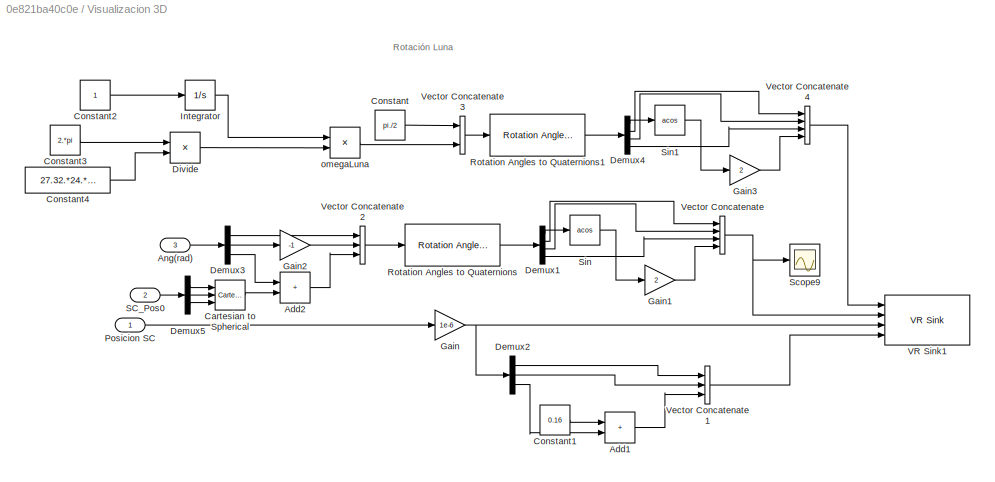
BLOCK [SubSystem] Visualizacion 3D
  Ports = [3]
  RequestExecContextInheritance = off
BLOCK [Sum] Visualizacion 3D/Add1
  IconShape = rectangular
  Ports = [2, 1]
BLOCK [Sum] Visualizacion 3D/Add2
  IconShape = rectangular
  Ports = [2, 1]
BLOCK [Inport] Visualizacion 3D/Ang(rad)
  Port = 3
BLOCK [Reference] Visualizacion 3D/Cartesian to Spherical  REF=simulink_extras/Transformations/Cartesian to
Spherical
  Ports = [3, 3]
  SourceBlock = simulink_extras/Transformations/Cartesian to\nSpherical
  SourceProductBaseCode = SL
  SourceType = Cart2Sph
BLOCK [Constant] Visualizacion 3D/Constant
  Value = pi./2
BLOCK [Constant] Visualizacion 3D/Constant1
  Value = 0.16
BLOCK [Constant] Visualizacion 3D/Constant2
BLOCK [Constant] Visualizacion 3D/Constant3
  Value = 2.*pi
BLOCK [Constant] Visualizacion 3D/Constant4
  Value = 27.32.*24.*3600
BLOCK [Demux] Visualizacion 3D/Demux1
  Ports = [1, 4]
BLOCK [Demux] Visualizacion 3D/Demux2
  Outputs = 3
  Ports = [1, 3]
BLOCK [Demux] Visualizacion 3D/Demux3
  Outputs = 3
  Ports = [1, 3]
BLOCK [Demux] Visualizacion 3D/Demux4
  Ports = [1, 4]
BLOCK [Demux] Visualizacion 3D/Demux5
  Outputs = 3
  Ports = [1, 3]
BLOCK [Product] Visualizacion 3D/Divide
  Inputs = */
  Ports = [2, 1]
BLOCK [Gain] Visualizacion 3D/Gain
  Gain = 1e-6
BLOCK [Gain] Visualizacion 3D/Gain1
  Gain = 2
BLOCK [Gain] Visualizacion 3D/Gain2
  Gain = -1
BLOCK [Gain] Visualizacion 3D/Gain3
  Gain = 2
BLOCK [Integrator] Visualizacion 3D/Integrator
  Ports = [1, 1]
BLOCK [Inport] Visualizacion 3D/Posicion SC
BLOCK [Reference] Visualizacion 3D/Rotation Angles to Quaternions  REF=sharedtransform/Rotation Angles to Quaternions
  AttributesFormatString = Rotation Order: %<rotationOrder>
  Ports = [1, 1]
  SourceBlock = sharedtransform/Rotation Angles to Quaternions
  SourceProductBaseCode = AE,PW,MT,UV,VE,VP
  SourceType = Ang2Quat
BLOCK [Reference] Visualizacion 3D/Rotation Angles to Quaternions1  REF=sharedtransform/Rotation Angles to Quaternions
  AttributesFormatString = Rotation Order: %<rotationOrder>
  Ports = [1, 1]
  SourceBlock = sharedtransform/Rotation Angles to Quaternions
  SourceProductBaseCode = AE,PW,MT,UV,VE,VP
  SourceType = Ang2Quat
BLOCK [Inport] Visualizacion 3D/SC_Pos0
  Port = 2
BLOCK [Scope] Visualizacion 3D/Scope9
  Floating = off
  NumInputPorts = 1
  Ports = [1]
  ScopeSpecificationString = Simulink.scopes.TimeScopeBlockCfg('CurrentConfiguration', extmgr.ConfigurationSet(extmgr.Configuration('Core','General UI',true),extmgr.Configuration('Core','Source UI',true),extmgr.Configuration('Sources','WiredSimulink',true,'DataLoggingVariableName','ScopeData1'),extmgr.Configuration('Visuals','Time Domain',true,'SerializedDisplays',{struct('MinYLimReal','-1.51752','MaxYLimReal','3.65768','YLab...<+1397ch>
BLOCK [Trigonometry] Visualizacion 3D/Sin
  Operator = acos
  Ports = [1, 1]
BLOCK [Trigonometry] Visualizacion 3D/Sin1
  Operator = acos
  Ports = [1, 1]
BLOCK [Reference] Visualizacion 3D/VR Sink1  REF=vrlib/VR Sink
  InstantiateOnLoad = on
  Ports = [4]
  SourceBlock = vrlib/VR Sink
  SourceProductBaseCode = SL
  SourceType = Virtual Reality Sink
BLOCK [Concatenate] Visualizacion 3D/Vector Concatenate
  NumInputs = 4
  Ports = [4, 1]
BLOCK [Concatenate] Visualizacion 3D/Vector Concatenate1
  NumInputs = 3
  Ports = [3, 1]
BLOCK [Concatenate] Visualizacion 3D/Vector Concatenate2
  NumInputs = 3
  Ports = [3, 1]
BLOCK [Concatenate] Visualizacion 3D/Vector Concatenate3
  NumInputs = 3
  Ports = [3, 1]
BLOCK [Concatenate] Visualizacion 3D/Vector Concatenate4
  NumInputs = 4
  Ports = [4, 1]
BLOCK [Product] Visualizacion 3D/omegaLuna
  Ports = [2, 1]
BLOCK [Reference] XY Graph  REF=simulink/Sinks/XY Graph
  Ports = [2]
  SourceBlock = simulink/Sinks/XY Graph
  SourceProductBaseCode = SL
  SourceType = XY scope.
BLOCK [Sin] delta
  Amplitude = 0.01
  Frequency = 0.001
  Ports = [0, 1]
  SampleTime = 0
BLOCK [Sin] mu
  Amplitude = 0.05
  Frequency = 0.001
  Ports = [0, 1]
  SampleTime = 0
ANNOTATION Dinamica rotacional: Euler
ANNOTATION Visualizacion 3D: Rotación Luna
NET Add2:1 -> Newton 2nd:1, Scope6:1
LINE Cambio ejes propulsion/Ang(rad):1 -> Cambio ejes propulsion/Subsystem2:1
LINE Cambio ejes propulsion/MatrixMultiply:1 -> Cambio ejes propulsion/Product2:1
LINE Cambio ejes propulsion/Product2:1 -> Cambio ejes propulsion/Propulsion EQ:1
LINE Cambio ejes propulsion/Propulsion SC:1 -> Cambio ejes propulsion/Product2:2
LINE Cambio ejes propulsion/Subsystem/Constant1:1 -> Cambio ejes propulsion/Subsystem/Create 3x3 Matrix1:9
LINE Cambio ejes propulsion/Subsystem/Constant:1 -> Cambio ejes propulsion/Subsystem/Create 3x3 Matrix:1
LINE Cambio ejes propulsion/Subsystem/Create 3x3 Matrix1:1 -> Cambio ejes propulsion/Subsystem/Reqop:2
LINE Cambio ejes propulsion/Subsystem/Create 3x3 Matrix:1 -> Cambio ejes propulsion/Subsystem/Reqop:1
LINE Cambio ejes propulsion/Subsystem/Gain1:1 -> Cambio ejes propulsion/Subsystem/Create 3x3 Matrix1:4
LINE Cambio ejes propulsion/Subsystem/Gain:1 -> Cambio ejes propulsion/Subsystem/Create 3x3 Matrix:8
LINE Cambio ejes propulsion/Subsystem/Reqop:1 -> Cambio ejes propulsion/Subsystem/inv:1
NET Cambio ejes propulsion/Subsystem/Trigonometric Function1:1 -> Cambio ejes propulsion/Subsystem/Create 3x3 Matrix:5, Cambio ejes propulsion/Subsystem/Create 3x3 Matrix:9
NET Cambio ejes propulsion/Subsystem/Trigonometric Function2:1 -> Cambio ejes propulsion/Subsystem/Create 3x3 Matrix1:1, Cambio ejes propulsion/Subsystem/Create 3x3 Matrix1:5
NET Cambio ejes propulsion/Subsystem/Trigonometric Function3:1 -> Cambio ejes propulsion/Subsystem/Create 3x3 Matrix1:2, Cambio ejes propulsion/Subsystem/Gain1:1
NET Cambio ejes propulsion/Subsystem/Trigonometric Function:1 -> Cambio ejes propulsion/Subsystem/Create 3x3 Matrix:6, Cambio ejes propulsion/Subsystem/Gain:1
NET Cambio ejes propulsion/Subsystem/inc:1 -> Cambio ejes propulsion/Subsystem/Trigonometric Function1:1, Cambio ejes propulsion/Subsystem/Trigonometric Function:1
LINE Cambio ejes propulsion/Subsystem/inv:1 -> Cambio ejes propulsion/Subsystem/Ropeq:1
NET Cambio ejes propulsion/Subsystem/raan:1 -> Cambio ejes propulsion/Subsystem/Trigonometric Function2:1, Cambio ejes propulsion/Subsystem/Trigonometric Function3:1
NET Cambio ejes propulsion/Subsystem1/Constant1:1 -> Cambio ejes propulsion/Subsystem1/Create 3x3 Matrix1:3, Cambio ejes propulsion/Subsystem1/Create 3x3 Matrix1:5, Cambio ejes propulsion/Subsystem1/Gain1:1
NET Cambio ejes propulsion/Subsystem1/Constant2:1 -> Cambio ejes propulsion/Subsystem1/Create 3x3 Matrix2:1, Cambio ejes propulsion/Subsystem1/Create 3x3 Matrix2:8, Cambio ejes propulsion/Subsystem1/Gain2:1
LINE Cambio ejes propulsion/Subsystem1/Constant3:1 -> Cambio ejes propulsion/Subsystem1/Create 3x3 Matrix3:9
LINE Cambio ejes propulsion/Subsystem1/Create 3x3 Matrix1:1 -> Cambio ejes propulsion/Subsystem1/Roplo:1
LINE Cambio ejes propulsion/Subsystem1/Create 3x3 Matrix2:1 -> Cambio ejes propulsion/Subsystem1/Roplo:2
LINE Cambio ejes propulsion/Subsystem1/Create 3x3 Matrix3:1 -> Cambio ejes propulsion/Subsystem1/Roplo:3
LINE Cambio ejes propulsion/Subsystem1/Gain1:1 -> Cambio ejes propulsion/Subsystem1/Create 3x3 Matrix1:7
LINE Cambio ejes propulsion/Subsystem1/Gain2:1 -> Cambio ejes propulsion/Subsystem1/Create 3x3 Matrix2:6
LINE Cambio ejes propulsion/Subsystem1/Gain3:1 -> Cambio ejes propulsion/Subsystem1/Create 3x3 Matrix3:4
LINE Cambio ejes propulsion/Subsystem1/Roplo:1 -> Cambio ejes propulsion/Subsystem1/inv:1
NET Cambio ejes propulsion/Subsystem1/Trigonometric Function2:1 -> Cambio ejes propulsion/Subsystem1/Create 3x3 Matrix3:1, Cambio ejes propulsion/Subsystem1/Create 3x3 Matrix3:5
NET Cambio ejes propulsion/Subsystem1/Trigonometric Function3:1 -> Cambio ejes propulsion/Subsystem1/Create 3x3 Matrix3:2, Cambio ejes propulsion/Subsystem1/Gain3:1
NET Cambio ejes propulsion/Subsystem1/anom:1 -> Cambio ejes propulsion/Subsystem1/Trigonometric Function2:1, Cambio ejes propulsion/Subsystem1/Trigonometric Function3:1
LINE Cambio ejes propulsion/Subsystem1/inv:1 -> Cambio ejes propulsion/Subsystem1/Rloop:1
LINE Cambio ejes propulsion/Subsystem1:1 -> Cambio ejes propulsion/MatrixMultiply:2
LINE Cambio ejes propulsion/Subsystem2/Constant1:1 -> Cambio ejes propulsion/Subsystem2/Create 3x3 Matrix2:5
NET Cambio ejes propulsion/Subsystem2/Constant2:1 -> Cambio ejes propulsion/Subsystem2/Create 3x3 Matrix1:1, Cambio ejes propulsion/Subsystem2/Create 3x3 Matrix1:8, Cambio ejes propulsion/Subsystem2/Gain2:1
LINE Cambio ejes propulsion/Subsystem2/Constant3:1 -> Cambio ejes propulsion/Subsystem2/Create 3x3 Matrix3:9
LINE Cambio ejes propulsion/Subsystem2/Constant:1 -> Cambio ejes propulsion/Subsystem2/Create 3x3 Matrix:1
LINE Cambio ejes propulsion/Subsystem2/Create 3x3 Matrix1:1 -> Cambio ejes propulsion/Subsystem2/Product2:1
LINE Cambio ejes propulsion/Subsystem2/Create 3x3 Matrix2:1 -> Cambio ejes propulsion/Subsystem2/Rloa:2
LINE Cambio ejes propulsion/Subsystem2/Create 3x3 Matrix3:1 -> Cambio ejes propulsion/Subsystem2/Rloa:3
LINE Cambio ejes propulsion/Subsystem2/Create 3x3 Matrix:1 -> Cambio ejes propulsion/Subsystem2/Rloa:1
NET Cambio ejes propulsion/Subsystem2/Demux:1 -> Cambio ejes propulsion/Subsystem2/Trigonometric Function1:1, Cambio ejes propulsion/Subsystem2/Trigonometric Function:1
NET Cambio ejes propulsion/Subsystem2/Demux:2 -> Cambio ejes propulsion/Subsystem2/Trigonometric Function4:1, Cambio ejes propulsion/Subsystem2/Trigonometric Function5:1
NET Cambio ejes propulsion/Subsystem2/Demux:3 -> Cambio ejes propulsion/Subsystem2/Trigonometric Function2:1, Cambio ejes propulsion/Subsystem2/Trigonometric Function3:1
LINE Cambio ejes propulsion/Subsystem2/Gain1:1 -> Cambio ejes propulsion/Subsystem2/Create 3x3 Matrix2:3
LINE Cambio ejes propulsion/Subsystem2/Gain2:1 -> Cambio ejes propulsion/Subsystem2/Create 3x3 Matrix1:6
LINE Cambio ejes propulsion/Subsystem2/Gain3:1 -> Cambio ejes propulsion/Subsystem2/Create 3x3 Matrix3:4
LINE Cambio ejes propulsion/Subsystem2/Gain:1 -> Cambio ejes propulsion/Subsystem2/Create 3x3 Matrix:8
LINE Cambio ejes propulsion/Subsystem2/Product2:1 -> Cambio ejes propulsion/Subsystem2/Ralo:1
LINE Cambio ejes propulsion/Subsystem2/Rloa:1 -> Cambio ejes propulsion/Subsystem2/inv:1
NET Cambio ejes propulsion/Subsystem2/Trigonometric Function1:1 -> Cambio ejes propulsion/Subsystem2/Create 3x3 Matrix:5, Cambio ejes propulsion/Subsystem2/Create 3x3 Matrix:9
NET Cambio ejes propulsion/Subsystem2/Trigonometric Function2:1 -> Cambio ejes propulsion/Subsystem2/Create 3x3 Matrix3:1, Cambio ejes propulsion/Subsystem2/Create 3x3 Matrix3:5
NET Cambio ejes propulsion/Subsystem2/Trigonometric Function3:1 -> Cambio ejes propulsion/Subsystem2/Create 3x3 Matrix3:2, Cambio ejes propulsion/Subsystem2/Gain3:1
NET Cambio ejes propulsion/Subsystem2/Trigonometric Function4:1 -> Cambio ejes propulsion/Subsystem2/Create 3x3 Matrix2:7, Cambio ejes propulsion/Subsystem2/Gain1:1
NET Cambio ejes propulsion/Subsystem2/Trigonometric Function5:1 -> Cambio ejes propulsion/Subsystem2/Create 3x3 Matrix2:1, Cambio ejes propulsion/Subsystem2/Create 3x3 Matrix2:9
NET Cambio ejes propulsion/Subsystem2/Trigonometric Function:1 -> Cambio ejes propulsion/Subsystem2/Create 3x3 Matrix:6, Cambio ejes propulsion/Subsystem2/Gain:1
LINE Cambio ejes propulsion/Subsystem2/ang:1 -> Cambio ejes propulsion/Subsystem2/Demux:1
LINE Cambio ejes propulsion/Subsystem2/inv:1 -> Cambio ejes propulsion/Subsystem2/Product2:2
LINE Cambio ejes propulsion/Subsystem2:1 -> Cambio ejes propulsion/MatrixMultiply:3
LINE Cambio ejes propulsion/Subsystem:1 -> Cambio ejes propulsion/MatrixMultiply:1
LINE Cambio ejes propulsion/anom:1 -> Cambio ejes propulsion/Subsystem1:1
LINE Cambio ejes propulsion/inc:1 -> Cambio ejes propulsion/Subsystem:1
LINE Cambio ejes propulsion/raan:1 -> Cambio ejes propulsion/Subsystem:2
NET Cambio ejes propulsion:1 -> Add2:2, Scope8:1
NET Campo gravitacional/Cartesian to Spherical:1 -> Campo gravitacional/Division2:2, Campo gravitacional/Subsystem1:1, Campo gravitacional/Subsystem:2
NET Campo gravitacional/Cartesian to Spherical:2 -> Campo gravitacional/Trigonometric Function2:1, Campo gravitacional/Trigonometric Function5:1
NET Campo gravitacional/Cartesian to Spherical:3 -> Campo gravitacional/Subsystem1:2, Campo gravitacional/Subsystem:1, Campo gravitacional/Trigonometric Function3:1, Campo gravitacional/Trigonometric Function4:1
LINE Campo gravitacional/Demux:1 -> Campo gravitacional/Cartesian to Spherical:1
LINE Campo gravitacional/Demux:2 -> Campo gravitacional/Cartesian to Spherical:2
LINE Campo gravitacional/Demux:3 -> Campo gravitacional/Cartesian to Spherical:3
NET Campo gravitacional/Division2:1 -> Campo gravitacional/Scope1:1, Campo gravitacional/radio2:2
LINE Campo gravitacional/Gain1:1 -> Campo gravitacional/Vector Concatenate:3
NET Campo gravitacional/Position:1 -> Campo gravitacional/Demux:1, Campo gravitacional/Product2:2
LINE Campo gravitacional/Product1:1 -> Campo gravitacional/Vector Concatenate:2
LINE Campo gravitacional/Product2:1 -> Campo gravitacional/Division2:1
NET Campo gravitacional/Product3:1 -> Campo gravitacional/Scope11:1, Campo gravitacional/radio2:1
LINE Campo gravitacional/Product4:1 -> Campo gravitacional/Vector Concatenate:1
LINE Campo gravitacional/Subsystem/Constant1:1 -> Campo gravitacional/Subsystem/radio2:1
LINE Campo gravitacional/Subsystem/Constant2:1 -> Campo gravitacional/Subsystem/radio3:1
LINE Campo gravitacional/Subsystem/Division2:1 -> Campo gravitacional/Subsystem/Square1:1
LINE Campo gravitacional/Subsystem/Division:1 -> Campo gravitacional/Subsystem/Gain:1
LINE Campo gravitacional/Subsystem/Gain2:1 -> Campo gravitacional/Subsystem/radio2:2
LINE Campo gravitacional/Subsystem/Gain3:1 -> Campo gravitacional/Subsystem/Product3:3
LINE Campo gravitacional/Subsystem/Gain4:1 -> Campo gravitacional/Subsystem/radio3:2
LINE Campo gravitacional/Subsystem/Gain:1 -> Campo gravitacional/Subsystem/Product1:2
LINE Campo gravitacional/Subsystem/J2:1 -> Campo gravitacional/Subsystem/Product3:1
LINE Campo gravitacional/Subsystem/Latitud:1 -> Campo gravitacional/Subsystem/Trigonometric Function:1
LINE Campo gravitacional/Subsystem/Product1:1 -> Campo gravitacional/Subsystem/gravedad radial:1
LINE Campo gravitacional/Subsystem/Product3:1 -> Campo gravitacional/Subsystem/Gain2:1
LINE Campo gravitacional/Subsystem/R Luna:1 -> Campo gravitacional/Subsystem/Division2:1
LINE Campo gravitacional/Subsystem/Square1:1 -> Campo gravitacional/Subsystem/Product3:2
LINE Campo gravitacional/Subsystem/Square2:1 -> Campo gravitacional/Subsystem/Gain4:1
LINE Campo gravitacional/Subsystem/Square:1 -> Campo gravitacional/Subsystem/Division:2
LINE Campo gravitacional/Subsystem/Trigonometric Function:1 -> Campo gravitacional/Subsystem/Square2:1
LINE Campo gravitacional/Subsystem/mu Luna:1 -> Campo gravitacional/Subsystem/Division:1
LINE Campo gravitacional/Subsystem/radio2:1 -> Campo gravitacional/Subsystem/Product1:1
LINE Campo gravitacional/Subsystem/radio3:1 -> Campo gravitacional/Subsystem/Gain3:1
NET Campo gravitacional/Subsystem/radioSC:1 -> Campo gravitacional/Subsystem/Division2:2, Campo gravitacional/Subsystem/Square:1
LINE Campo gravitacional/Subsystem1/Altura inicial orbita:1 -> Campo gravitacional/Subsystem1/radio:2
LINE Campo gravitacional/Subsystem1/Division1:1 -> Campo gravitacional/Subsystem1/Square4:1
LINE Campo gravitacional/Subsystem1/Division:1 -> Campo gravitacional/Subsystem1/Product2:1
LINE Campo gravitacional/Subsystem1/Gain1:1 -> Campo gravitacional/Subsystem1/Division:1
LINE Campo gravitacional/Subsystem1/J2:1 -> Campo gravitacional/Subsystem1/Product2:4
NET Campo gravitacional/Subsystem1/Latitud:1 -> Campo gravitacional/Subsystem1/Trigonometric Function1:1, Campo gravitacional/Subsystem1/Trigonometric Function2:1
LINE Campo gravitacional/Subsystem1/Product2:1 -> Campo gravitacional/Subsystem1/gravedad J2:1
NET Campo gravitacional/Subsystem1/R Luna:1 -> Campo gravitacional/Subsystem1/Division1:1, Campo gravitacional/Subsystem1/radio:3
LINE Campo gravitacional/Subsystem1/Square3:1 -> Campo gravitacional/Subsystem1/Division:2
LINE Campo gravitacional/Subsystem1/Square4:1 -> Campo gravitacional/Subsystem1/Product2:5
LINE Campo gravitacional/Subsystem1/Trigonometric Function1:1 -> Campo gravitacional/Subsystem1/Product2:2
LINE Campo gravitacional/Subsystem1/Trigonometric Function2:1 -> Campo gravitacional/Subsystem1/Product2:3
LINE Campo gravitacional/Subsystem1/mu Luna:1 -> Campo gravitacional/Subsystem1/Gain1:1
NET Campo gravitacional/Subsystem1/radio:1 -> Campo gravitacional/Subsystem1/Division1:2, Campo gravitacional/Subsystem1/Square3:1
LINE Campo gravitacional/Subsystem1/radioSC:1 -> Campo gravitacional/Subsystem1/radio:1
LINE Campo gravitacional/Subsystem1:1 -> Campo gravitacional/Product3:1
LINE Campo gravitacional/Subsystem:1 -> Campo gravitacional/Product2:1
LINE Campo gravitacional/Trigonometric Function2:1 -> Campo gravitacional/Product1:2
LINE Campo gravitacional/Trigonometric Function3:1 -> Campo gravitacional/Gain1:1
NET Campo gravitacional/Trigonometric Function4:1 -> Campo gravitacional/Product1:1, Campo gravitacional/Product4:2
LINE Campo gravitacional/Trigonometric Function5:1 -> Campo gravitacional/Product4:1
LINE Campo gravitacional/Vector Concatenate:1 -> Campo gravitacional/Product3:2
LINE Campo gravitacional/radio2:1 -> Campo gravitacional/Componentes gravedad:1
LINE Campo gravitacional:1 -> Product:1
LINE Cond Ini Ang/CIAng:1 -> Cond Ini Ang/Ang0:1
LINE Cond Ini Ang/CIVelAng:1 -> Cond Ini Ang/VelAng0:1
LINE Cond Ini Ang:1 -> Dinamica rotacional:4
LINE Cond Ini Ang:2 -> Dinamica rotacional:5
LINE Cond Ini/SC_Pos0:1 -> Cond Ini/Out2:1
LINE Cond Ini/SC_v0:1 -> Cond Ini/Out1:1
LINE Cond Ini:1 -> Dinamica traslacional:2
NET Cond Ini:2 -> Dinamica traslacional:3, Visualizacion 3D:2
NET Cálculo masa/Add:1 -> Cálculo masa/Switch:1, Cálculo masa/Switch:2
LINE Cálculo masa/Constant:1 -> Cálculo masa/Integrator:1
LINE Cálculo masa/Integrator:1 -> Cálculo masa/Product:1
LINE Cálculo masa/Masa inicial:1 -> Cálculo masa/Add:1
LINE Cálculo masa/Masa seca:1 -> Cálculo masa/Switch:3
LINE Cálculo masa/Product:1 -> Cálculo masa/Add:2
LINE Cálculo masa/Switch:1 -> Cálculo masa/Masa:1
NET Cálculo masa/dm//dt (kg//s):1 -> Cálculo masa/Product:2, Cálculo masa/dm//dt:1
NET Cálculo masa:1 -> Inercia 1a aprox:1, Newton 2nd:2, Product:2, Scope7:1
LINE Cálculo masa:2 -> Inercia 1a aprox:2
LINE Demux:1 -> XY Graph:1
LINE Demux:2 -> XY Graph:2
LINE Dinamica rotacional/3x3 Cross Product2:1 -> Dinamica rotacional/Add1:3
LINE Dinamica rotacional/Add1:1 -> Dinamica rotacional/pdot,qdot,rdot:1
LINE Dinamica rotacional/Ang0:1 -> Dinamica rotacional/phi theta psi:2
LINE Dinamica rotacional/DCMatrix:1 -> Dinamica rotacional/DCM:1
LINE Dinamica rotacional/I_dot:1 -> Dinamica rotacional/Matrix Multiply2:1
NET Dinamica rotacional/Inertia:1 -> Dinamica rotacional/Invert 3x3 Matrix2:1, Dinamica rotacional/Matrix Multiply4:1
LINE Dinamica rotacional/Invert 3x3 Matrix2:1 -> Dinamica rotacional/pdot,qdot,rdot:2
LINE Dinamica rotacional/Matrix Multiply2:1 -> Dinamica rotacional/Reshape4:1
LINE Dinamica rotacional/Matrix Multiply4:1 -> Dinamica rotacional/Reshape2:1
LINE Dinamica rotacional/Momentos:1 -> Dinamica rotacional/Reshape3:1
NET Dinamica rotacional/Mux1:1 -> Dinamica rotacional/phidot:1, Dinamica rotacional/psidot:1, Dinamica rotacional/thetadot:1
NET Dinamica rotacional/Mux2:1 -> Dinamica rotacional/VelAng(rad//s):1, Dinamica rotacional/phi theta psi:1
LINE Dinamica rotacional/Radians to Degrees1:1 -> Dinamica rotacional/Ang(degrees):1
LINE Dinamica rotacional/Reshape1:1 -> Dinamica rotacional/3x3 Cross Product2:1
LINE Dinamica rotacional/Reshape2:1 -> Dinamica rotacional/3x3 Cross Product2:2
LINE Dinamica rotacional/Reshape3:1 -> Dinamica rotacional/Add1:1
LINE Dinamica rotacional/Reshape4:1 -> Dinamica rotacional/Add1:2
NET Dinamica rotacional/Reshape6:1 -> Dinamica rotacional/Matrix Multiply2:2, Dinamica rotacional/Matrix Multiply4:2, Dinamica rotacional/Reshape1:1
LINE Dinamica rotacional/Selector:1 -> Dinamica rotacional/DCMatrix:1
LINE Dinamica rotacional/VelAng0:1 -> Dinamica rotacional/p,q,r:2
NET Dinamica rotacional/p,q,r:1 -> Dinamica rotacional/Mux1:1, Dinamica rotacional/Reshape6:1
LINE Dinamica rotacional/pdot,qdot,rdot:1 -> Dinamica rotacional/p,q,r:1
NET Dinamica rotacional/phi theta psi:1 -> Dinamica rotacional/Ang(rad):1, Dinamica rotacional/Radians to Degrees1:1, Dinamica rotacional/Selector:1, Dinamica rotacional/sincos:1
LINE Dinamica rotacional/phidot:1 -> Dinamica rotacional/Mux2:1
LINE Dinamica rotacional/psidot:1 -> Dinamica rotacional/Mux2:3
LINE Dinamica rotacional/sincos:1 -> Dinamica rotacional/Mux1:2
LINE Dinamica rotacional/sincos:2 -> Dinamica rotacional/Mux1:3
LINE Dinamica rotacional/thetadot:1 -> Dinamica rotacional/Mux2:2
LINE Dinamica rotacional:1 -> Scope4:1
NET Dinamica rotacional:2 -> Cambio ejes propulsion:5, Scope3:1, Visualizacion 3D:3
LINE Dinamica rotacional:3 -> Scope5:1
LINE Dinamica traslacional/Add1:1 -> Dinamica traslacional/SC_Pos:1
NET Dinamica traslacional/Add:1 -> Dinamica traslacional/Integrator1:1, Dinamica traslacional/SC_Vel:1
LINE Dinamica traslacional/Integrator1:1 -> Dinamica traslacional/Add1:1
LINE Dinamica traslacional/Integrator:1 -> Dinamica traslacional/Add:1
LINE Dinamica traslacional/SC_Pos0:1 -> Dinamica traslacional/Add1:2
LINE Dinamica traslacional/SC_acc:1 -> Dinamica traslacional/Integrator:1
LINE Dinamica traslacional/SC_v0:1 -> Dinamica traslacional/Add:2
NET Dinamica traslacional:1 -> Campo gravitacional:1, Demux:1, Parametros Orbitales:1, Scope1:1, Visualizacion 3D:1
NET Dinamica traslacional:2 -> Parametros Orbitales:2, Scope:1
LINE Empuje:1 -> Propulsion:1
LINE Inercia 1a aprox/Add1:1 -> Inercia 1a aprox/Product3:1
LINE Inercia 1a aprox/Add:1 -> Inercia 1a aprox/Product1:1
LINE Inercia 1a aprox/Constant1:1 -> Inercia 1a aprox/Square2:1
LINE Inercia 1a aprox/Constant2:1 -> Inercia 1a aprox/Square3:1
LINE Inercia 1a aprox/Constant5:1 -> Inercia 1a aprox/Square:1
LINE Inercia 1a aprox/Constant6:1 -> Inercia 1a aprox/Square1:1
LINE Inercia 1a aprox/Gain1:1 -> Inercia 1a aprox/Product:2
LINE Inercia 1a aprox/Gain2:1 -> Inercia 1a aprox/Add:2
LINE Inercia 1a aprox/Gain3:1 -> Inercia 1a aprox/Product3:2
LINE Inercia 1a aprox/Gain4:1 -> Inercia 1a aprox/Product2:2
LINE Inercia 1a aprox/Gain5:1 -> Inercia 1a aprox/Add1:2
LINE Inercia 1a aprox/Gain:1 -> Inercia 1a aprox/Product1:2
NET Inercia 1a aprox/Product1:1 -> Inercia 1a aprox/Symmetric Inertia Tensor:1, Inercia 1a aprox/Symmetric Inertia Tensor:4
LINE Inercia 1a aprox/Product2:1 -> Inercia 1a aprox/Symmetric Inertia Tensor1:6
NET Inercia 1a aprox/Product3:1 -> Inercia 1a aprox/Symmetric Inertia Tensor1:1, Inercia 1a aprox/Symmetric Inertia Tensor1:4
LINE Inercia 1a aprox/Product:1 -> Inercia 1a aprox/Symmetric Inertia Tensor:6
LINE Inercia 1a aprox/Square1:1 -> Inercia 1a aprox/Add:1
NET Inercia 1a aprox/Square2:1 -> Inercia 1a aprox/Gain4:1, Inercia 1a aprox/Gain5:1
LINE Inercia 1a aprox/Square3:1 -> Inercia 1a aprox/Add1:1
NET Inercia 1a aprox/Square:1 -> Inercia 1a aprox/Gain1:1, Inercia 1a aprox/Gain2:1
LINE Inercia 1a aprox/Symmetric Inertia Tensor1:1 -> Inercia 1a aprox/I_dot:1
LINE Inercia 1a aprox/Symmetric Inertia Tensor:1 -> Inercia 1a aprox/Inertia:1
NET Inercia 1a aprox/dm//dt:1 -> Inercia 1a aprox/Gain3:1, Inercia 1a aprox/Product2:1
NET Inercia 1a aprox/masa:1 -> Inercia 1a aprox/Gain:1, Inercia 1a aprox/Product:1
LINE Inercia 1a aprox:1 -> Dinamica rotacional:1
LINE Inercia 1a aprox:2 -> Dinamica rotacional:2
NET Newton 2nd:1 -> Dinamica traslacional:1, Scope2:1
NET Parametros Orbitales/3x3 Cross Product:1 -> Parametros Orbitales/Demux:1, Parametros Orbitales/Dot Product1:1, Parametros Orbitales/Dot Product1:2, Parametros Orbitales/Scope:1, Parametros Orbitales/Subsystem:3
LINE Parametros Orbitales/Abs:1 -> Parametros Orbitales/Switch:2
LINE Parametros Orbitales/Add:1 -> Parametros Orbitales/Sqrt1:1
LINE Parametros Orbitales/Constant:1 -> Parametros Orbitales/Switch:3
NET Parametros Orbitales/Demux:1 -> Parametros Orbitales/Division1:1, Parametros Orbitales/Square:1
LINE Parametros Orbitales/Demux:2 -> Parametros Orbitales/Square1:1
LINE Parametros Orbitales/Demux:3 -> Parametros Orbitales/Division:1
LINE Parametros Orbitales/Division1:1 -> Parametros Orbitales/Trigonometric Function1:1
LINE Parametros Orbitales/Division:1 -> Parametros Orbitales/Trigonometric Function:1
LINE Parametros Orbitales/Dot Product1:1 -> Parametros Orbitales/Sqrt2:1
LINE Parametros Orbitales/Sqrt1:1 -> Parametros Orbitales/Division1:2
LINE Parametros Orbitales/Sqrt2:1 -> Parametros Orbitales/Division:2
LINE Parametros Orbitales/Square1:1 -> Parametros Orbitales/Add:2
LINE Parametros Orbitales/Square:1 -> Parametros Orbitales/Add:1
LINE Parametros Orbitales/Subsystem/Abs:1 -> Parametros Orbitales/Subsystem/Switch:2
LINE Parametros Orbitales/Subsystem/Add1:1 -> Parametros Orbitales/Subsystem/Switch1:3
LINE Parametros Orbitales/Subsystem/Add:1 -> Parametros Orbitales/Subsystem/Switch2:3
LINE Parametros Orbitales/Subsystem/Constant1:1 -> Parametros Orbitales/Subsystem/Vector Concatenate:3
LINE Parametros Orbitales/Subsystem/Constant2:1 -> Parametros Orbitales/Subsystem/Add:2
LINE Parametros Orbitales/Subsystem/Constant3:1 -> Parametros Orbitales/Subsystem/Add1:2
LINE Parametros Orbitales/Subsystem/Demux:2 -> Parametros Orbitales/Subsystem/Switch2:2
LINE Parametros Orbitales/Subsystem/Demux:3 -> Parametros Orbitales/Subsystem/Switch1:2
LINE Parametros Orbitales/Subsystem/Halllo e/Constant1:1 -> Parametros Orbitales/Subsystem/Halllo e/radio3:1
LINE Parametros Orbitales/Subsystem/Halllo e/Division4:1 -> Parametros Orbitales/Subsystem/Halllo e/radio3:2
LINE Parametros Orbitales/Subsystem/Halllo e/Dot Product3:1 -> Parametros Orbitales/Subsystem/Halllo e/Division4:1
LINE Parametros Orbitales/Subsystem/Halllo e/Product1:1 -> Parametros Orbitales/Subsystem/Halllo e/Division4:2
LINE Parametros Orbitales/Subsystem/Halllo e/Sqrt1:1 -> Parametros Orbitales/Subsystem/Halllo e/e:1
LINE Parametros Orbitales/Subsystem/Halllo e/a:1 -> Parametros Orbitales/Subsystem/Halllo e/Product1:1
NET Parametros Orbitales/Subsystem/Halllo e/h:1 -> Parametros Orbitales/Subsystem/Halllo e/Dot Product3:1, Parametros Orbitales/Subsystem/Halllo e/Dot Product3:2
LINE Parametros Orbitales/Subsystem/Halllo e/mu Luna:1 -> Parametros Orbitales/Subsystem/Halllo e/Product1:2
LINE Parametros Orbitales/Subsystem/Halllo e/radio3:1 -> Parametros Orbitales/Subsystem/Halllo e/Sqrt1:1
LINE Parametros Orbitales/Subsystem/Halllo e:1 -> Parametros Orbitales/Subsystem/e:1
LINE Parametros Orbitales/Subsystem/Hallo a/Division1:1 -> Parametros Orbitales/Subsystem/Hallo a/a:1
LINE Parametros Orbitales/Subsystem/Hallo a/Division3:1 -> Parametros Orbitales/Subsystem/Hallo a/radio2:1
LINE Parametros Orbitales/Subsystem/Hallo a/Dot Product1:1 -> Parametros Orbitales/Subsystem/Hallo a/radio2:2
LINE Parametros Orbitales/Subsystem/Hallo a/Dot Product2:1 -> Parametros Orbitales/Subsystem/Hallo a/Sqrt:1
LINE Parametros Orbitales/Subsystem/Hallo a/Gain2:1 -> Parametros Orbitales/Subsystem/Hallo a/Division3:1
LINE Parametros Orbitales/Subsystem/Hallo a/Sqrt:1 -> Parametros Orbitales/Subsystem/Hallo a/Division3:2
NET Parametros Orbitales/Subsystem/Hallo a/mu Luna:1 -> Parametros Orbitales/Subsystem/Hallo a/Division1:1, Parametros Orbitales/Subsystem/Hallo a/Gain2:1
NET Parametros Orbitales/Subsystem/Hallo a/r:1 -> Parametros Orbitales/Subsystem/Hallo a/Dot Product2:1, Parametros Orbitales/Subsystem/Hallo a/Dot Product2:2
LINE Parametros Orbitales/Subsystem/Hallo a/radio2:1 -> Parametros Orbitales/Subsystem/Hallo a/Division1:2
NET Parametros Orbitales/Subsystem/Hallo a/v:1 -> Parametros Orbitales/Subsystem/Hallo a/Dot Product1:1, Parametros Orbitales/Subsystem/Hallo a/Dot Product1:2
NET Parametros Orbitales/Subsystem/Hallo a:1 -> Parametros Orbitales/Subsystem/Halllo e:1, Parametros Orbitales/Subsystem/a:1
LINE Parametros Orbitales/Subsystem/Subsystem/Divide:1 -> Parametros Orbitales/Subsystem/Subsystem/Trigonometric Function:1
LINE Parametros Orbitales/Subsystem/Subsystem/Dot Product1:1 -> Parametros Orbitales/Subsystem/Subsystem/Divide:1
LINE Parametros Orbitales/Subsystem/Subsystem/Dot Product:1 -> Parametros Orbitales/Subsystem/Subsystem/Sqrt:1
LINE Parametros Orbitales/Subsystem/Subsystem/Sqrt:1 -> Parametros Orbitales/Subsystem/Subsystem/Divide:2
LINE Parametros Orbitales/Subsystem/Subsystem/Trigonometric Function:1 -> Parametros Orbitales/Subsystem/Subsystem/anom:1
LINE Parametros Orbitales/Subsystem/Subsystem/asc node:1 -> Parametros Orbitales/Subsystem/Subsystem/Dot Product1:1
NET Parametros Orbitales/Subsystem/Subsystem/r:1 -> Parametros Orbitales/Subsystem/Subsystem/Dot Product1:2, Parametros Orbitales/Subsystem/Subsystem/Dot Product:1, Parametros Orbitales/Subsystem/Subsystem/Dot Product:2
LINE Parametros Orbitales/Subsystem/Subsystem1/Divide:1 -> Parametros Orbitales/Subsystem/Subsystem1/Trigonometric Function:1
LINE Parametros Orbitales/Subsystem/Subsystem1/Dot Product1:1 -> Parametros Orbitales/Subsystem/Subsystem1/Divide:1
LINE Parametros Orbitales/Subsystem/Subsystem1/Dot Product:1 -> Parametros Orbitales/Subsystem/Subsystem1/Sqrt:1
LINE Parametros Orbitales/Subsystem/Subsystem1/Sqrt:1 -> Parametros Orbitales/Subsystem/Subsystem1/Divide:2
LINE Parametros Orbitales/Subsystem/Subsystem1/Trigonometric Function:1 -> Parametros Orbitales/Subsystem/Subsystem1/anom:1
LINE Parametros Orbitales/Subsystem/Subsystem1/asc node:1 -> Parametros Orbitales/Subsystem/Subsystem1/Dot Product1:1
NET Parametros Orbitales/Subsystem/Subsystem1/r:1 -> Parametros Orbitales/Subsystem/Subsystem1/Dot Product1:2, Parametros Orbitales/Subsystem/Subsystem1/Dot Product:1, Parametros Orbitales/Subsystem/Subsystem1/Dot Product:2
NET Parametros Orbitales/Subsystem/Subsystem1:1 -> Parametros Orbitales/Subsystem/Add1:1, Parametros Orbitales/Subsystem/Switch1:1
NET Parametros Orbitales/Subsystem/Subsystem:1 -> Parametros Orbitales/Subsystem/Add:1, Parametros Orbitales/Subsystem/Switch2:1
LINE Parametros Orbitales/Subsystem/Switch1:1 -> Parametros Orbitales/Subsystem/Switch:1
LINE Parametros Orbitales/Subsystem/Switch2:1 -> Parametros Orbitales/Subsystem/Switch:3
LINE Parametros Orbitales/Subsystem/Switch:1 -> Parametros Orbitales/Subsystem/anom:1
LINE Parametros Orbitales/Subsystem/Trigonometric Function2:1 -> Parametros Orbitales/Subsystem/Vector Concatenate:1
LINE Parametros Orbitales/Subsystem/Trigonometric Function3:1 -> Parametros Orbitales/Subsystem/Vector Concatenate:2
NET Parametros Orbitales/Subsystem/Vector Concatenate:1 -> Parametros Orbitales/Subsystem/Subsystem1:1, Parametros Orbitales/Subsystem/Subsystem:2
LINE Parametros Orbitales/Subsystem/h:1 -> Parametros Orbitales/Subsystem/Halllo e:3
LINE Parametros Orbitales/Subsystem/inc:1 -> Parametros Orbitales/Subsystem/Abs:1
NET Parametros Orbitales/Subsystem/mu Luna:1 -> Parametros Orbitales/Subsystem/Halllo e:2, Parametros Orbitales/Subsystem/Hallo a:3
NET Parametros Orbitales/Subsystem/r:1 -> Parametros Orbitales/Subsystem/Demux:1, Parametros Orbitales/Subsystem/Hallo a:2, Parametros Orbitales/Subsystem/Subsystem1:2, Parametros Orbitales/Subsystem/Subsystem:1
NET Parametros Orbitales/Subsystem/raan:1 -> Parametros Orbitales/Subsystem/Trigonometric Function2:1, Parametros Orbitales/Subsystem/Trigonometric Function3:1
LINE Parametros Orbitales/Subsystem/v:1 -> Parametros Orbitales/Subsystem/Hallo a:1
LINE Parametros Orbitales/Subsystem:1 -> Parametros Orbitales/anom:1
LINE Parametros Orbitales/Subsystem:2 -> Parametros Orbitales/e:1
LINE Parametros Orbitales/Subsystem:3 -> Parametros Orbitales/a:1
NET Parametros Orbitales/Switch:1 -> Parametros Orbitales/Subsystem:2, Parametros Orbitales/raan:1
LINE Parametros Orbitales/Trigonometric Function1:1 -> Parametros Orbitales/Switch:1
NET Parametros Orbitales/Trigonometric Function:1 -> Parametros Orbitales/Abs:1, Parametros Orbitales/Subsystem:1, Parametros Orbitales/inc:1
NET Parametros Orbitales/r:1 -> Parametros Orbitales/3x3 Cross Product:1, Parametros Orbitales/Subsystem:5
NET Parametros Orbitales/v:1 -> Parametros Orbitales/3x3 Cross Product:2, Parametros Orbitales/Subsystem:4
LINE Parametros Orbitales:1 -> Cambio ejes propulsion:1
LINE Parametros Orbitales:2 -> Cambio ejes propulsion:2
LINE Parametros Orbitales:3 -> Cambio ejes propulsion:3
NET Product:1 -> Add2:1, Scope11:1
NET Propulsion/Empuje motor:1 -> Propulsion/Product1:1, Propulsion/Product2:1, Propulsion/Product3:3, Propulsion/Product4:4, Propulsion/Product:2
NET Propulsion/Epsilon:1 -> Propulsion/Product3:4, Propulsion/Product4:1
LINE Propulsion/Gain1:1 -> Propulsion/Vector Concatenate:3
LINE Propulsion/Gain2:1 -> Propulsion/Vector Concatenate:2
LINE Propulsion/Gain:1 -> Propulsion/Vector Concatenate1:2
LINE Propulsion/Product1:1 -> Propulsion/Gain2:1
LINE Propulsion/Product2:1 -> Propulsion/Gain1:1
LINE Propulsion/Product3:1 -> Propulsion/Gain:1
LINE Propulsion/Product4:1 -> Propulsion/Vector Concatenate1:3
LINE Propulsion/Product:1 -> Propulsion/Vector Concatenate:1
LINE Propulsion/Trigonometric Function1:1 -> Propulsion/Product:1
NET Propulsion/Trigonometric Function2:1 -> Propulsion/Product1:3, Propulsion/Product4:2
NET Propulsion/Trigonometric Function3:1 -> Propulsion/Product2:3, Propulsion/Product3:1
NET Propulsion/Trigonometric Function:1 -> Propulsion/Product1:2, Propulsion/Product2:2, Propulsion/Product3:2, Propulsion/Product4:3
LINE Propulsion/Vector Concatenate1:1 -> Propulsion/Momentos propulsivos:1
LINE Propulsion/Vector Concatenate:1 -> Propulsion/Fuerzas propulsivas:1
NET Propulsion/delta:1 -> Propulsion/Trigonometric Function2:1, Propulsion/Trigonometric Function3:1
NET Propulsion/mu:1 -> Propulsion/Trigonometric Function1:1, Propulsion/Trigonometric Function:1
LINE Propulsion/zero:1 -> Propulsion/Vector Concatenate1:1
NET Propulsion:1 -> Cambio ejes propulsion:4, Scope10:1
LINE Propulsion:2 -> Dinamica rotacional:3
LINE Visualizacion 3D/Add1:1 -> Visualizacion 3D/Vector Concatenate1:3
LINE Visualizacion 3D/Add2:1 -> Visualizacion 3D/Vector Concatenate2:3
LINE Visualizacion 3D/Ang(rad):1 -> Visualizacion 3D/Demux3:1
LINE Visualizacion 3D/Cartesian to Spherical:2 -> Visualizacion 3D/Add2:2
LINE Visualizacion 3D/Constant1:1 -> Visualizacion 3D/Add1:1
LINE Visualizacion 3D/Constant2:1 -> Visualizacion 3D/Integrator:1
LINE Visualizacion 3D/Constant3:1 -> Visualizacion 3D/Divide:1
LINE Visualizacion 3D/Constant4:1 -> Visualizacion 3D/Divide:2
LINE Visualizacion 3D/Constant:1 -> Visualizacion 3D/Vector Concatenate3:1
LINE Visualizacion 3D/Demux1:1 -> Visualizacion 3D/Sin:1
LINE Visualizacion 3D/Demux1:2 -> Visualizacion 3D/Vector Concatenate:1
LINE Visualizacion 3D/Demux1:3 -> Visualizacion 3D/Vector Concatenate:2
LINE Visualizacion 3D/Demux1:4 -> Visualizacion 3D/Vector Concatenate:3
LINE Visualizacion 3D/Demux2:1 -> Visualizacion 3D/Vector Concatenate1:1
LINE Visualizacion 3D/Demux2:2 -> Visualizacion 3D/Vector Concatenate1:2
LINE Visualizacion 3D/Demux2:3 -> Visualizacion 3D/Add1:2
LINE Visualizacion 3D/Demux3:1 -> Visualizacion 3D/Vector Concatenate2:1
LINE Visualizacion 3D/Demux3:2 -> Visualizacion 3D/Gain2:1
LINE Visualizacion 3D/Demux3:3 -> Visualizacion 3D/Add2:1
LINE Visualizacion 3D/Demux4:1 -> Visualizacion 3D/Sin1:1
LINE Visualizacion 3D/Demux4:2 -> Visualizacion 3D/Vector Concatenate4:1
LINE Visualizacion 3D/Demux4:3 -> Visualizacion 3D/Vector Concatenate4:2
LINE Visualizacion 3D/Demux4:4 -> Visualizacion 3D/Vector Concatenate4:3
LINE Visualizacion 3D/Demux5:1 -> Visualizacion 3D/Cartesian to Spherical:1
LINE Visualizacion 3D/Demux5:2 -> Visualizacion 3D/Cartesian to Spherical:2
LINE Visualizacion 3D/Demux5:3 -> Visualizacion 3D/Cartesian to Spherical:3
LINE Visualizacion 3D/Divide:1 -> Visualizacion 3D/omegaLuna:2
LINE Visualizacion 3D/Gain1:1 -> Visualizacion 3D/Vector Concatenate:4
LINE Visualizacion 3D/Gain2:1 -> Visualizacion 3D/Vector Concatenate2:2
LINE Visualizacion 3D/Gain3:1 -> Visualizacion 3D/Vector Concatenate4:4
NET Visualizacion 3D/Gain:1 -> Visualizacion 3D/Demux2:1, Visualizacion 3D/VR Sink1:3
LINE Visualizacion 3D/Integrator:1 -> Visualizacion 3D/omegaLuna:1
LINE Visualizacion 3D/Posicion SC:1 -> Visualizacion 3D/Gain:1
LINE Visualizacion 3D/Rotation Angles to Quaternions1:1 -> Visualizacion 3D/Demux4:1
LINE Visualizacion 3D/Rotation Angles to Quaternions:1 -> Visualizacion 3D/Demux1:1
LINE Visualizacion 3D/SC_Pos0:1 -> Visualizacion 3D/Demux5:1
LINE Visualizacion 3D/Sin1:1 -> Visualizacion 3D/Gain3:1
LINE Visualizacion 3D/Sin:1 -> Visualizacion 3D/Gain1:1
LINE Visualizacion 3D/Vector Concatenate1:1 -> Visualizacion 3D/VR Sink1:4
LINE Visualizacion 3D/Vector Concatenate2:1 -> Visualizacion 3D/Rotation Angles to Quaternions:1
LINE Visualizacion 3D/Vector Concatenate3:1 -> Visualizacion 3D/Rotation Angles to Quaternions1:1
LINE Visualizacion 3D/Vector Concatenate4:1 -> Visualizacion 3D/VR Sink1:1
NET Visualizacion 3D/Vector Concatenate:1 -> Visualizacion 3D/Scope9:1, Visualizacion 3D/VR Sink1:2
LINE Visualizacion 3D/omegaLuna:1 -> Visualizacion 3D/Vector Concatenate3:3
LINE delta:1 -> Propulsion:3
LINE mu:1 -> Propulsion:2
note: NET lines group one-source signal fan-out (src -> all destinations, sorted); 1:1 wires keep LINE
CHART Parametros Orbitales/Subsystem/MATLAB Function1 states=1 transitions=1
  STATE_LABEL 'eML_blk_kernel()'
  STATE_LABEL 'SCRIPT:\nfunction [anom,e,a] = fcn(raan,inc,v,r)\n    \n    rnorm = abs(norm(r));\n    vnorm = abs(norm(v));\n\n    h = cross(r,v);\n    hnorm = abs(norm(h));\n    \n    muLuna = 4.9028e12;\n    \n    p = (hnorm.^2)./muLuna;\n    \n    a = muLuna./(2.*muLuna./rnorm - vnorm.^2);\n    \n    e = sqrt(1 - p./a);\n    \n    ascnode = [cos(raan),sin(raan),0]; %Ascending node\n    \n    if abs(inc) > 1e-8\n        if r(3) >...<+313ch>'
CHART Cambio ejes propulsion/MATLAB Function states=1 transitions=1
  STATE_LABEL 'eML_blk_kernel()'
  STATE_LABEL 'SCRIPT:\nfunction feq = fcn(inc,raan,anom,fsc,ang)\n\nReqop = [1,0,0;0,cos(inc),sin(inc);0,-sin(inc),cos(inc)]*[cos(raan),sin(raan),0;-sin(raan),cos(raan),0;0,0,1];\nRopeq = inv(Reqop);\n\nRoplo = [1,0,0;0,0,-1;0,1,0]*[0,1,0;-1,0,0;0,0,1]*[cos(anom),sin(anom),0;-sin(anom),cos(anom),0;0,0,1];\nRloop = inv(Roplo);\n\nalphax = ang(1);\nalphay = ang(2);\nalphaz = ang(3);\nRloa = [1,0,0;0,cos(alphax),sin(alphax);0...<+203ch>'
CHART  states=0 transitions=0
CHART  states=0 transitions=0
